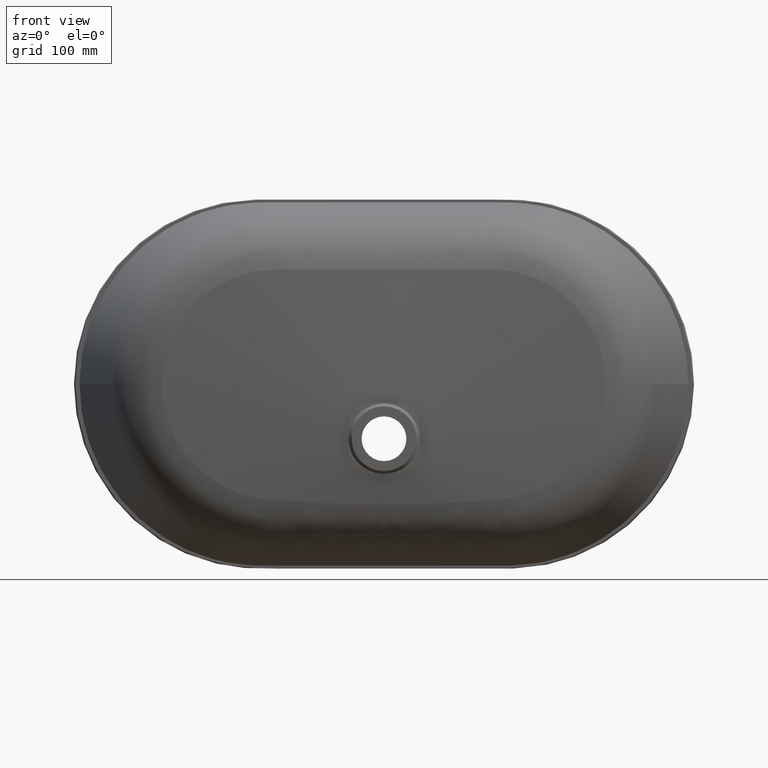
[diagram: clean part render]
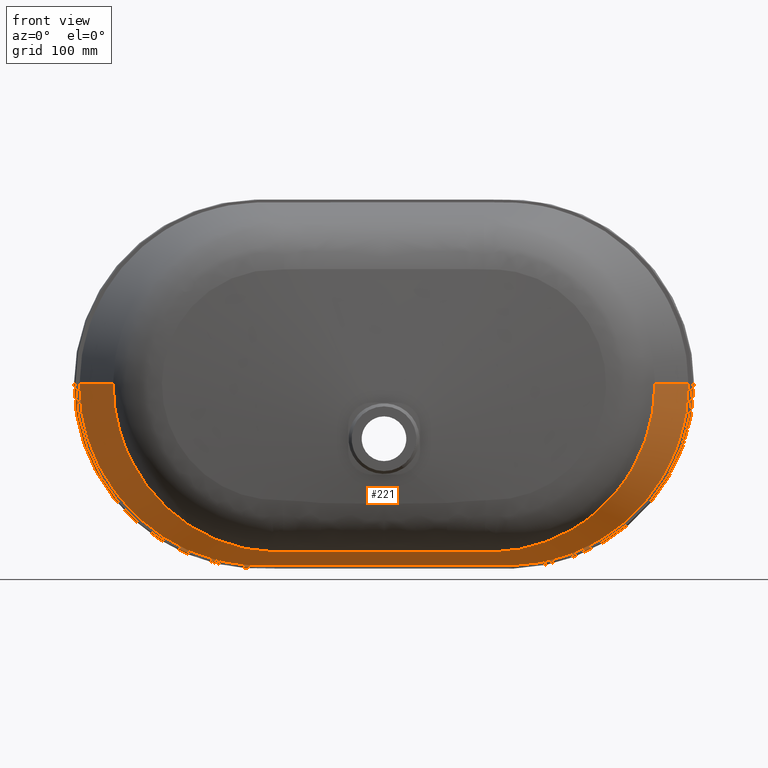
[diagram: same view with one face highlighted and labeled with its STEP entity id]
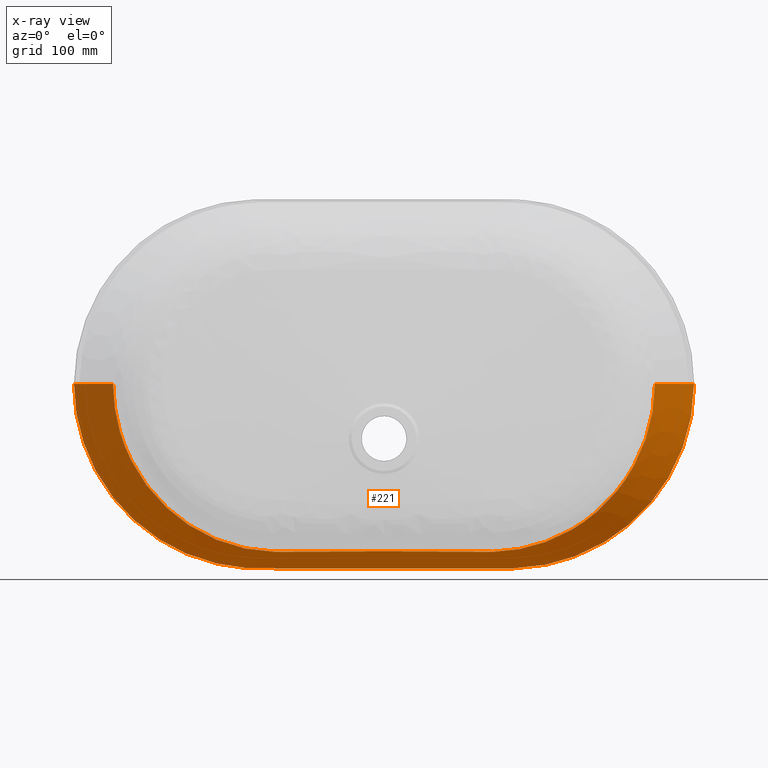
[diagram: x-ray of the same camera — body ghosted, the highlighted face saturated]
A machine part, front view. The second image highlights one B-rep face of the part: STEP entity #221.
The next image is the same camera in x-ray: the body ghosted, the highlighted face saturated — about 0% of this face is hidden behind the body in this view.
In plain terms, the highlighted face is a freeform B-spline surface patch.
Its self-contained STEP definition (entity closure, byte-faithful):
#11 = CARTESIAN_POINT ( 'NONE',  ( 167.1428668434834600, -62.46967030795718800, -157.0243041852110700 ) ) ;
#18 = CARTESIAN_POINT ( 'NONE',  ( 311.5017764221227600, -1.734723475976828600E-015, -8.751839720445049800 ) ) ;
#28 = CARTESIAN_POINT ( 'NONE',  ( 121.2511578375670200, -20.72713905414165600, -179.5021486568958800 ) ) ;
#33 = CARTESIAN_POINT ( 'NONE',  ( -101.8523799998709800, -67.36851461724865000, -166.2569263829765000 ) ) ;
#58 = CARTESIAN_POINT ( 'NONE',  ( 114.5741273212181700, -58.98164518680918200, -168.5539924868748200 ) ) ;
#67 = CARTESIAN_POINT ( 'NONE',  ( 278.2546672573281500, -3.903127820947741800E-015, -105.9478331071724700 ) ) ;
#78 = CARTESIAN_POINT ( 'NONE',  ( 279.4274463011912500, -22.71124357862072400, -80.95170037358450100 ) ) ;
#114 = CARTESIAN_POINT ( 'NONE',  ( 230.7175900736518800, 3.122502256758221200E-014, -152.9734404277197700 ) ) ;
#126 = CARTESIAN_POINT ( 'NONE',  ( 262.9635271916648700, -45.99711943105521100, -85.28343072849413900 ) ) ;
#131 = CARTESIAN_POINT ( 'NONE',  ( -111.1220431871568800, -44.03824686907996300, -172.8848433568881000 ) ) ;
#163 = CARTESIAN_POINT ( 'NONE',  ( 154.6404134439362400, 3.642919299551360500E-014, -183.1469868826846700 ) ) ;
#174 = CARTESIAN_POINT ( 'NONE',  ( 278.4522047448351700, -46.17106036605435500, -47.93616074622533300 ) ) ;
#179 = CARTESIAN_POINT ( 'NONE',  ( -106.6038942739611900, -67.36851461724865000, -166.2569263829765000 ) ) ;
#208 = CARTESIAN_POINT ( 'NONE',  ( 122.0027190025229400, -1.034328872551171700E-013, -185.3957089446949700 ) ) ;
#221 = ADVANCED_FACE ( 'NONE', ( #8310 ), #7142, .T. ) ;
#222 = CARTESIAN_POINT ( 'NONE',  ( 107.1501825487186000, -67.37632970535952400, -166.2539103106463500 ) ) ;
#228 = CARTESIAN_POINT ( 'NONE',  ( -119.6667178243935600, -20.70797912091438800, -179.5127603307995800 ) ) ;
#259 = CARTESIAN_POINT ( 'NONE',  ( -145.9505323175616800, 3.037934487304372800E-013, -184.3115016478749300 ) ) ;
#273 = CARTESIAN_POINT ( 'NONE',  ( 132.6286324727614700, -67.75678001989000200, -164.0923484429193900 ) ) ;
#280 = CARTESIAN_POINT ( 'NONE',  ( 16.59534111120838100, -20.70797912091320800, -179.5127603307992400 ) ) ;
#313 = CARTESIAN_POINT ( 'NONE',  ( -214.0030874960137100, 4.735795089416683400E-013, -163.2031362728198800 ) ) ;
#325 = CARTESIAN_POINT ( 'NONE',  ( 275.4639470730232300, -22.66808792766214600, -88.37721977250564000 ) ) ;
#360 = CARTESIAN_POINT ( 'NONE',  ( -273.0621080576245800, 7.025630077706167200E-014, -112.9671528519833100 ) ) ;
#403 = CARTESIAN_POINT ( 'NONE',  ( -308.4562749636107200, 1.301042606982810000E-014, -34.53934662071664300 ) ) ;
#510 = CARTESIAN_POINT ( 'NONE',  ( -114.5673916066022100, -44.05733063828557800, -172.8744860521150600 ) ) ;
#552 = CARTESIAN_POINT ( 'NONE',  ( -181.1249174171555300, -21.53756569702235200, -168.6668322599744000 ) ) ;
#576 = CARTESIAN_POINT ( 'NONE',  ( -109.2037735468490400, -58.63557263068994300, -168.7378758109761600 ) ) ;
#595 = CARTESIAN_POINT ( 'NONE',  ( -214.2825084733612500, 1.494843361569505400, -163.9410757437973400 ) ) ;
#620 = CARTESIAN_POINT ( 'NONE',  ( 113.2301050515245500, -44.03824686907996300, -172.8848433568881500 ) ) ;
#621 = CARTESIAN_POINT ( 'NONE',  ( -146.4394074674571900, -61.08358851996499100, -163.7945427384835000 ) ) ;
#641 = CARTESIAN_POINT ( 'NONE',  ( -232.4511599804046400, -69.10747087247011700, -107.6480308913674300 ) ) ;
#664 = CARTESIAN_POINT ( 'NONE',  ( 119.7304886039471500, -20.70797912091003900, -179.5127603308001800 ) ) ;
#665 = CARTESIAN_POINT ( 'NONE',  ( -218.0942693390146600, -65.84952818032101600, -124.5396932824212400 ) ) ;
#700 = EDGE_CURVE ( 'NONE', #12363, #3629, #12752, .T. ) ;
#707 = CARTESIAN_POINT ( 'NONE',  ( -261.9492149237409500, -68.59707341562041400, -58.49058250719900100 ) ) ;
#727 = CARTESIAN_POINT ( 'NONE',  ( -116.0977829218990100, -44.07970928707617700, -172.8497077931199900 ) ) ;
#743 = CARTESIAN_POINT ( 'NONE',  ( 103.6774373686314400, -67.36851461724862100, -166.2569263829765600 ) ) ;
#773 = CARTESIAN_POINT ( 'NONE',  ( -258.6397997631592600, -45.94719978486557500, -92.15515575571814100 ) ) ;
#778 = EDGE_CURVE ( 'NONE', #6867, #11522, #7640, .T. ) ;
#790 = CARTESIAN_POINT ( 'NONE',  ( 98.17494106069307200, -67.36851461724862100, -166.2569263829765600 ) ) ;
#812 = CARTESIAN_POINT ( 'NONE',  ( 269.5973817961745500, -69.03140197092335500, -29.70399335235224900 ) ) ;
#828 = CARTESIAN_POINT ( 'NONE',  ( 127.9359598928951100, 2.603042605177278800, -186.1298002117502200 ) ) ;
#834 = CARTESIAN_POINT ( 'NONE',  ( -106.7234264729933700, -67.36982435991666300, -166.2565431662296500 ) ) ;
#862 = CARTESIAN_POINT ( 'NONE',  ( -107.8786883463200300, -67.38742734269534700, -166.2468875176275300 ) ) ;
#870 = CARTESIAN_POINT ( 'NONE',  ( -311.5014372080728400, 7.871307772244762200E-013, -2.515349040166370300E-014 ) ) ;
#872 = CARTESIAN_POINT ( 'NONE',  ( 170.1250847277844400, -68.29229988577994000, -153.5193398679601000 ) ) ;
#899 = CARTESIAN_POINT ( 'NONE',  ( 257.8933696882180600, -68.35410762218252500, -68.44149489780672000 ) ) ;
#905 = CARTESIAN_POINT ( 'NONE',  ( -138.5340952326319600, 2.459379820001233800, -185.9193427133861600 ) ) ;
#918 = CARTESIAN_POINT ( 'NONE',  ( 201.2827627617438700, -45.24907827042941500, -148.5249261843537200 ) ) ;
#954 = CARTESIAN_POINT ( 'NONE',  ( -227.3157048527313900, -45.57492635077220900, -129.1600827555379600 ) ) ;
#965 = CARTESIAN_POINT ( 'NONE',  ( 237.4982138368889900, -69.16963023417703500, -101.7015586478911300 ) ) ;
#970 = CARTESIAN_POINT ( 'NONE',  ( 49.47423811228721000, -20.70797912091359900, -179.5127603307991500 ) ) ;
#978 = B_SPLINE_CURVE_WITH_KNOTS ( 'NONE', 3,
 ( #5367, #18, #7522, #1089, #8604, #2178, #9689, #3256, #10768, #4340, #11848, #5414, #12917, #6490, #67, #7569, #1141, #8653, #2225, #9737, #3302, #10814, #4388, #11895, #5458, #12963, #6539, #114, #7617, #1188, #8703, #2270, #9780, #3349, #10859, #4430, #11940, #5507, #13009, #6586, #163, #7664, #1236, #8749, #2320, #9827, #3398, #10909, #4480, #11987, #5553, #13062, #6633, #208, #7714, #1284, #8798, #2370, #9880, #3446, #10958, #4534, #12039, #5601, #13110, #6685, #259, #7762, #1335, #8850, #2420, #9930, #3501, #11006, #4583, #12089, #5654, #13161, #6735, #313, #7811, #1385, #8902, #2468, #9977, #3546, #11057, #4626, #12133, #5703, #13207, #6781, #360, #7859, #1433, #8944, #2516, #10023, #3589, #11101, #4674, #12175, #5747, #13253, #6828, #403, #7903, #1478, #8988 ),
 .UNSPECIFIED., .F., .F.,
 ( 4, 2, 2, 2, 2, 2, 2, 2, 2, 2, 2, 2, 2, 2, 2, 2, 2, 2, 2, 2, 2, 2, 2, 2, 2, 2, 2, 1, 1, 1, 1, 1, 2, 2, 2, 2, 2, 2, 2, 2, 2, 2, 2, 2, 2, 2, 2, 2, 2, 2, 2, 2, 2, 2, 2, 2, 4 ),
 ( 1.522215418473033700, 1.548285489164982700, 1.574355559856931900, 1.580873077529918900, 1.587390595202906200, 1.600425630548880700, 1.626495701240829400, 1.639530736586803900, 1.646048254259791200, 1.652565771932778200, 1.678635842624727000, 1.691670877970701300, 1.698188395643688500, 1.701447154480182100, 1.704705913316675800, 1.730775984008625000, 1.756846054700574000, 1.763363572373561200, 1.769881090046548500, 1.782916125392523200, 1.786174884229016600, 1.787804263647263500, 1.789433643065510200, 1.795951160738497300, 1.808986196084471300, 1.812244954920964700, 1.815503713757458300, 1.822021231430445400, 1.835056266776419600, 1.939336549544213200, 2.043616832312006500, 2.056651867657980600, 2.063169385330967800, 2.066428144167461200, 2.069686903003955100, 2.082721938349928700, 2.089239456022915500, 2.095756973695902700, 2.108792009041876400, 2.115309526714863600, 2.121827044387850400, 2.147897115079798100, 2.160932150425772100, 2.167449668098758900, 2.170708426935252300, 2.173967185771745700, 2.200037256463693400, 2.226107327155641100, 2.232624844828627900, 2.239142362501614700, 2.252177397847588300, 2.278247468539536000, 2.291282503885509600, 2.297800021558496800, 2.304317539231483600, 2.330387609923431300, 2.356457680615379000 ),
 .UNSPECIFIED. ) ;
#982 = CARTESIAN_POINT ( 'NONE',  ( 70.84035781900274700, -59.88159943499385200, -168.3838909233899700 ) ) ;
#1000 = CARTESIAN_POINT ( 'NONE',  ( -120.9890246702896500, -20.72344462424998200, -179.5052012696426700 ) ) ;
#1009 = CARTESIAN_POINT ( 'NONE',  ( 156.0163140186724000, 2.228800941213195100, -183.6669704581378500 ) ) ;
#1024 = CARTESIAN_POINT ( 'NONE',  ( -54.17290192985519300, -60.03108749255958500, -168.3414227252178000 ) ) ;
#1035 = CARTESIAN_POINT ( 'NONE',  ( 220.1810568844074100, -65.98498698106344300, -122.5677455005046300 ) ) ;
#1045 = CARTESIAN_POINT ( 'NONE',  ( -283.5223643792262500, -46.22694670401394700, -24.21633910552874300 ) ) ;
#1053 = CARTESIAN_POINT ( 'NONE',  ( 148.2212289729804400, -21.09994183270719900, -177.1419025275003500 ) ) ;
#1058 = CARTESIAN_POINT ( 'NONE',  ( -112.0857661042890200, -44.03824686907996300, -172.8848433568881000 ) ) ;
#1082 = CARTESIAN_POINT ( 'NONE',  ( 151.8466246497377200, -61.44534774307159400, -162.3170993508820500 ) ) ;
#1089 = CARTESIAN_POINT ( 'NONE',  ( 308.4550789262376000, 1.626303258728256400E-013, -34.54743891246748400 ) ) ;
#1101 = CARTESIAN_POINT ( 'NONE',  ( 116.0954902875188400, -44.07966454127319600, -172.8497602598229700 ) ) ;
#1106 = CARTESIAN_POINT ( 'NONE',  ( -126.6895321027511900, 2.619998664570023300, -186.1399502800450700 ) ) ;
#1132 = CARTESIAN_POINT ( 'NONE',  ( 111.5073792039723300, -58.78376137933148000, -168.6807886340763500 ) ) ;
#1141 = CARTESIAN_POINT ( 'NONE',  ( 273.0538672973198700, 3.382710778154777000E-014, -112.9777284580370800 ) ) ;
#1153 = CARTESIAN_POINT ( 'NONE',  ( 113.3554797179858600, -44.03956710397379500, -172.8844565343822000 ) ) ;
#1159 = CARTESIAN_POINT ( 'NONE',  ( -106.4320745598858600, -67.36851461724865000, -166.2569263829765000 ) ) ;
#1188 = CARTESIAN_POINT ( 'NONE',  ( 221.6316996550585000, -2.471980953266947100E-013, -159.0397349842035300 ) ) ;
#1200 = CARTESIAN_POINT ( 'NONE',  ( 263.2552095918348400, -69.47591263246697200, -53.71113298795997800 ) ) ;
#1205 = CARTESIAN_POINT ( 'NONE',  ( -65.71774944146058300, -20.70797912091705200, -179.5127603307984700 ) ) ;
#1236 = CARTESIAN_POINT ( 'NONE',  ( 152.4784555239914400, -2.602085213965210600E-015, -183.4708341801102400 ) ) ;
#1248 = CARTESIAN_POINT ( 'NONE',  ( 256.1339118162054000, -22.45128845826980800, -115.8468398117067000 ) ) ;
#1253 = CARTESIAN_POINT ( 'NONE',  ( -106.6611686847551800, -67.36851461724865000, -166.2569263829765000 ) ) ;
#1284 = CARTESIAN_POINT ( 'NONE',  ( 74.07478503361919300, -1.616545439175889400E-013, -185.3957089446948300 ) ) ;
#1298 = CARTESIAN_POINT ( 'NONE',  ( 276.2088792868702900, -46.14625265657112900, -55.71547116824682900 ) ) ;
#1305 = CARTESIAN_POINT ( 'NONE',  ( -126.8290057364575600, 2.618100131096801100, -186.1392841164081100 ) ) ;
#1335 = CARTESIAN_POINT ( 'NONE',  ( -152.4575816700276500, 7.350890729451717500E-014, -183.4859596469826200 ) ) ;
#1348 = CARTESIAN_POINT ( 'NONE',  ( 273.4189776949261800, -46.11513540326131300, -63.33981935761211400 ) ) ;
#1349 = VERTEX_POINT ( 'NONE', #3975 ) ;
#1385 = CARTESIAN_POINT ( 'NONE',  ( -221.5304181557340000, -1.561251128379356400E-014, -158.8756401302341600 ) ) ;
#1397 = CARTESIAN_POINT ( 'NONE',  ( 302.1154650267783900, 0.5132730833223304600, -59.72666407857180100 ) ) ;
#1433 = CARTESIAN_POINT ( 'NONE',  ( -278.2581725003216200, -1.366094737331751000E-013, -105.9423610008101000 ) ) ;
#1478 = CARTESIAN_POINT ( 'NONE',  ( -311.5014372080726200, -1.734723475976911400E-015, -8.755308401651399600 ) ) ;
#1536 = CARTESIAN_POINT ( 'NONE',  ( -254.1819900906638500, -69.36980237177633100, -75.25884850377224200 ) ) ;
#1576 = CARTESIAN_POINT ( 'NONE',  ( -283.2917265003591800, 0.7111375948212085300, -98.93436632137157000 ) ) ;
#1624 = CARTESIAN_POINT ( 'NONE',  ( -186.8763020001424000, -45.06203341184154700, -156.0408282587462200 ) ) ;
#1649 = CARTESIAN_POINT ( 'NONE',  ( -109.2908018559624000, -58.64116685963574600, -168.7362194312897300 ) ) ;
#1668 = CARTESIAN_POINT ( 'NONE',  ( -211.5944747516209400, -21.92274206666066400, -154.0520127347530500 ) ) ;
#1691 = CARTESIAN_POINT ( 'NONE',  ( 113.2902813472713200, -44.03824686907996300, -172.8848433568881500 ) ) ;
#1692 = CARTESIAN_POINT ( 'NONE',  ( -161.8566376285751900, -62.11513417994928000, -159.0434981165878400 ) ) ;
#1710 = CARTESIAN_POINT ( 'NONE',  ( -221.8951358510383900, 1.404149883781290700, -159.5864588315529000 ) ) ;
#1733 = CARTESIAN_POINT ( 'NONE',  ( 106.4316159108284000, -67.36851461724863600, -166.2569263829765600 ) ) ;
#1734 = CARTESIAN_POINT ( 'NONE',  ( -223.0043554793826100, -66.16754872859760900, -119.8120388214202400 ) ) ;
#1753 = CARTESIAN_POINT ( 'NONE',  ( -296.7144817020516700, -22.89670223141173400, -25.13316376818173800 ) ) ;
#1781 = CARTESIAN_POINT ( 'NONE',  ( -266.7750461309967100, -68.87621129405226800, -43.00509202017649100 ) ) ;
#1801 = CARTESIAN_POINT ( 'NONE',  ( -132.3983851093700800, -44.31527292815059100, -171.9326150465258000 ) ) ;
#1817 = CARTESIAN_POINT ( 'NONE',  ( 124.1811369547954300, 2.622288627257174400, -186.1406773047111200 ) ) ;
#1839 = CARTESIAN_POINT ( 'NONE',  ( 285.2258827059970900, -46.24557025970940300, 1.819376051218365800E-013 ) ) ;
#1846 = CARTESIAN_POINT ( 'NONE',  ( -216.0714578011518400, -68.90196669581050100, -124.3961835671405500 ) ) ;
#1862 = CARTESIAN_POINT ( 'NONE',  ( 110.5884233800441900, -20.70797912091454400, -179.5127603307992400 ) ) ;
#1885 = CARTESIAN_POINT ( 'NONE',  ( 268.0647648659716000, -68.94830388288791300, -37.71184165881818000 ) ) ;
#1891 = CARTESIAN_POINT ( 'NONE',  ( -109.3378862116941500, -67.40960809322609700, -166.2231687658936600 ) ) ;
#1901 = CARTESIAN_POINT ( 'NONE',  ( 115.5858326736659800, -44.07222380223557000, -172.8602712977192100 ) ) ;
#1907 = CARTESIAN_POINT ( 'NONE',  ( -124.1667929910641400, 2.622288627257472800, -186.1406773047111500 ) ) ;
#1935 = CARTESIAN_POINT ( 'NONE',  ( -120.7220245270150900, -20.71967841211337100, -179.5077116120839700 ) ) ;
#1949 = CARTESIAN_POINT ( 'NONE',  ( 108.3688843533836300, -67.39488332155100600, -166.2410775001332000 ) ) ;
#1978 = CARTESIAN_POINT ( 'NONE',  ( 308.7147415430548000, 0.4456407639758560600, -34.53001624571695800 ) ) ;
#1984 = CARTESIAN_POINT ( 'NONE',  ( -308.6903029532151100, 0.4459206279120863600, -34.66550161911331400 ) ) ;
#1996 = CARTESIAN_POINT ( 'NONE',  ( 113.4192119371517700, -44.04050189613599300, -172.8841339055789500 ) ) ;
#2001 = CARTESIAN_POINT ( 'NONE',  ( 69.81731638449215900, 2.622288627257610500, -186.1406773047112000 ) ) ;
#2023 = CARTESIAN_POINT ( 'NONE',  ( 283.5241771920513500, -46.22696947084693900, -24.20382984322144900 ) ) ;
#2032 = CARTESIAN_POINT ( 'NONE',  ( -129.6170174289228800, 2.580235769198097300, -186.1028367791468000 ) ) ;
#2042 = CARTESIAN_POINT ( 'NONE',  ( 127.6587850343206300, 2.606809316008939200, -186.1329899365310300 ) ) ;
#2047 = CARTESIAN_POINT ( 'NONE',  ( 0.1995041928938513800, 2.622288627257188100, -186.1406773047112600 ) ) ;
#2059 = CARTESIAN_POINT ( 'NONE',  ( 64.59044713959922000, -59.96616708621073900, -168.3598660224760700 ) ) ;
#2079 = CARTESIAN_POINT ( 'NONE',  ( -156.4257834298886100, -44.65273632639550500, -167.4057480107255700 ) ) ;
#2089 = CARTESIAN_POINT ( 'NONE',  ( 140.4254484922503300, -44.42849934618481500, -170.6170023417481300 ) ) ;
#2094 = CARTESIAN_POINT ( 'NONE',  ( -120.9870376009576500, 2.622288627257472800, -186.1406773047111500 ) ) ;
#2106 = CARTESIAN_POINT ( 'NONE',  ( -64.59044280120083700, -59.96616711310344500, -168.3598660148360300 ) ) ;
#2120 = CARTESIAN_POINT ( 'NONE',  ( 215.1880582242760600, -65.66111091398782700, -127.1983452129168900 ) ) ;
#2140 = CARTESIAN_POINT ( 'NONE',  ( 147.2984452417470300, 2.343049794430621900, -185.1044101641540200 ) ) ;
#2145 = CARTESIAN_POINT ( 'NONE',  ( 14.44593981044899400, -67.36851461724865000, -166.2569263829763300 ) ) ;
#2171 = CARTESIAN_POINT ( 'NONE',  ( 124.0854170537607600, -59.60006394456888800, -167.7810944366255800 ) ) ;
#2178 = CARTESIAN_POINT ( 'NONE',  ( 303.6123495201598000, 3.890117394877987400E-013, -53.50803492821567900 ) ) ;
#2181 = CARTESIAN_POINT ( 'NONE',  ( -100.0000000019619200, -58.99679448524219800, -168.6352559659328600 ) ) ;
#2193 = CARTESIAN_POINT ( 'NONE',  ( 0.1156409850120122000, -20.70797912091148200, -179.5127603307991800 ) ) ;
#2215 = CARTESIAN_POINT ( 'NONE',  ( 109.7170285744513900, -58.66856047597566700, -168.7275670858694200 ) ) ;
#2225 = CARTESIAN_POINT ( 'NONE',  ( 268.9817221571313400, -1.288032180912777500E-013, -118.0790377937632600 ) ) ;
#2235 = CARTESIAN_POINT ( 'NONE',  ( 106.9064323175578400, -67.37261470448550000, -166.2555876277337500 ) ) ;
#2241 = CARTESIAN_POINT ( 'NONE',  ( -125.2258553057244700, 2.622288627257708600, -186.1406773047111800 ) ) ;
#2270 = CARTESIAN_POINT ( 'NONE',  ( 198.5454012780321000, 2.556548722720823000E-013, -170.7936623178883600 ) ) ;
#2281 = CARTESIAN_POINT ( 'NONE',  ( 265.4230087413056400, -69.50086703930749400, -46.21375839762546900 ) ) ;
#2287 = CARTESIAN_POINT ( 'NONE',  ( -123.1068745276953100, 2.622288627257472800, -186.1406773047111500 ) ) ;
#2320 = CARTESIAN_POINT ( 'NONE',  ( 150.8473870914944300, 2.309350627394124900E-013, -183.6998399374865000 ) ) ;
#2333 = CARTESIAN_POINT ( 'NONE',  ( 216.0869641093353300, -68.90219849870631200, -124.3825472190072900 ) ) ;
#2339 = CARTESIAN_POINT ( 'NONE',  ( -119.8562572170479400, -20.70797912091244800, -179.5127603307994400 ) ) ;
#2370 = CARTESIAN_POINT ( 'NONE',  ( -74.06610177935502300, -5.334274688628720300E-014, -185.3957089446947200 ) ) ;
#2383 = CARTESIAN_POINT ( 'NONE',  ( 257.3608236890130500, -69.40707334840506300, -68.17759054215120800 ) ) ;
#2389 = CARTESIAN_POINT ( 'NONE',  ( -126.9684701678947500, 2.616202315638021900, -186.1384604514727000 ) ) ;
#2420 = CARTESIAN_POINT ( 'NONE',  ( -161.0758502091188100, 6.505213034913024100E-014, -182.0697545085139400 ) ) ;
#2432 = CARTESIAN_POINT ( 'NONE',  ( 171.9365901569710200, -44.86364921417388300, -162.5376087281361200 ) ) ;
#2461 = CARTESIAN_POINT ( 'NONE',  ( 267.5908078907764300, -69.52582144614802900, -38.71638380729096000 ) ) ;
#2468 = CARTESIAN_POINT ( 'NONE',  ( -225.2362036503614000, 3.447762908503920800E-013, -156.5796831406132700 ) ) ;
#2482 = CARTESIAN_POINT ( 'NONE',  ( 120.1869071335330100, -20.71212475965080200, -179.5113906789263800 ) ) ;
#2509 = EDGE_CURVE ( 'NONE', #11522, #4600, #5832, .T. ) ;
#2516 = CARTESIAN_POINT ( 'NONE',  ( -287.6203311870540900, 1.873501354054953700E-013, -91.36133149706317600 ) ) ;
#2592 = EDGE_CURVE ( 'NONE', #13200, #12363, #978, .T. ) ;
#2620 = CARTESIAN_POINT ( 'NONE',  ( -266.7872175310639600, -46.04036082271547100, -78.13981784952953500 ) ) ;
#2663 = CARTESIAN_POINT ( 'NONE',  ( -210.2271877872675800, -68.82760848937046200, -129.5835995288060500 ) ) ;
#2708 = CARTESIAN_POINT ( 'NONE',  ( -299.0782551172408100, 0.5447625094360957200, -68.05480371624008700 ) ) ;
#2732 = CARTESIAN_POINT ( 'NONE',  ( -109.7175277896688900, -58.66860346058212600, -168.7275530720954200 ) ) ;
#2751 = CARTESIAN_POINT ( 'NONE',  ( -139.9017831815499700, -20.98696291521995500, -178.5128587366147600 ) ) ;
#2777 = CARTESIAN_POINT ( 'NONE',  ( 126.6191934845347300, 2.620955663959442500, -186.1402857136974900 ) ) ;
#2778 = CARTESIAN_POINT ( 'NONE',  ( -176.9260120487639400, -63.12841084021411600, -152.7121935320142300 ) ) ;
#2793 = ORIENTED_EDGE ( 'NONE', *, *, #3492, .T. ) ;
#2798 = CARTESIAN_POINT ( 'NONE',  ( -107.6354788566092000, -67.38372546061825100, -166.2497677052716900 ) ) ;
#2823 = CARTESIAN_POINT ( 'NONE',  ( 104.5951644825717500, -67.36851461724862100, -166.2569263829765600 ) ) ;
#2824 = CARTESIAN_POINT ( 'NONE',  ( -232.1956966117131700, -66.75868049406453500, -109.8650911934679300 ) ) ;
#2844 = CARTESIAN_POINT ( 'NONE',  ( -221.9157278150360600, -68.97632490225053900, -119.2087676054750300 ) ) ;
#2870 = CARTESIAN_POINT ( 'NONE',  ( -269.3584568339544500, -69.01862248355007500, -31.02426194481906000 ) ) ;
#2889 = CARTESIAN_POINT ( 'NONE',  ( -291.4570901562141800, -22.84090963712047200, -49.74362368327672400 ) ) ;
#2901 = CARTESIAN_POINT ( 'NONE',  ( 114.6275987266695600, -20.70797912090868900, -179.5127603307999200 ) ) ;
#2924 = CARTESIAN_POINT ( 'NONE',  ( 298.4817174222081300, -22.91530251154072700, -8.385428571803791100 ) ) ;
#2931 = CARTESIAN_POINT ( 'NONE',  ( -267.6025617616481300, -69.52597056502479200, -38.66745053448714500 ) ) ;
#2948 = CARTESIAN_POINT ( 'NONE',  ( 94.50913336106958700, -67.36851461724862100, -166.2569263829765600 ) ) ;
#2978 = CARTESIAN_POINT ( 'NONE',  ( -256.2861332608824800, 1.006726042227735800, -132.8806757798205100 ) ) ;
#2988 = CARTESIAN_POINT ( 'NONE',  ( 129.5986749111188200, 2.580476318873013800, -186.1032038815453400 ) ) ;
#2995 = CARTESIAN_POINT ( 'NONE',  ( -119.7930793178473700, -20.70797912091244800, -179.5127603307994400 ) ) ;
#3016 = CARTESIAN_POINT ( 'NONE',  ( 295.5535132082725300, -22.88447358883345500, -33.37435237968419700 ) ) ;
#3022 = CARTESIAN_POINT ( 'NONE',  ( -170.0684725551626600, -68.29144751860148700, -153.5429266070174500 ) ) ;
#3031 = CARTESIAN_POINT ( 'NONE',  ( 229.0597197288323900, 1.319908228851084600, -154.7895440314879600 ) ) ;
#3065 = CARTESIAN_POINT ( 'NONE',  ( -201.2923947444931200, -45.24924514431546600, -148.5185664079761800 ) ) ;
#3077 = CARTESIAN_POINT ( 'NONE',  ( 139.8423176330024700, -20.98605106694886000, -178.5192135061509800 ) ) ;
#3082 = CARTESIAN_POINT ( 'NONE',  ( 35.12872140393988500, 2.622288627257324000, -186.1406773047112000 ) ) ;
#3093 = CARTESIAN_POINT ( 'NONE',  ( 100.0000000024155200, -58.99679448528349500, -168.6352559659212000 ) ) ;
#3104 = CARTESIAN_POINT ( 'NONE',  ( 296.7232834601924200, -22.89680437826200800, -25.07123993943480800 ) ) ;
#3114 = CARTESIAN_POINT ( 'NONE',  ( -280.6916983762910100, -46.19581816958029200, -40.17378626990131400 ) ) ;
#3128 = CARTESIAN_POINT ( 'NONE',  ( 147.9425864992574300, -67.97988074909770300, -161.0321971905855500 ) ) ;
#3133 = CARTESIAN_POINT ( 'NONE',  ( -14.55011067195050800, -67.36851461724862100, -166.2569263829763300 ) ) ;
#3146 = CARTESIAN_POINT ( 'NONE',  ( 54.17290445961496900, -60.03108747708853300, -168.3414227296130200 ) ) ;
#3157 = CARTESIAN_POINT ( 'NONE',  ( 311.1299623669019600, 0.4211011147679672400, -17.34788114783778600 ) ) ;
#3178 = CARTESIAN_POINT ( 'NONE',  ( -30.94831049553799900, -44.03824686907992700, -172.8848433568881000 ) ) ;
#3189 = CARTESIAN_POINT ( 'NONE',  ( -70.84035303518260200, -59.88159952125176500, -168.3838908988848300 ) ) ;
#3201 = CARTESIAN_POINT ( 'NONE',  ( 204.7554132521798400, -64.97956817647367700, -135.7992756814724400 ) ) ;
#3208 = CARTESIAN_POINT ( 'NONE',  ( 106.0802306495658100, -58.75684018830641300, -168.7034248002897200 ) ) ;
#3218 = CARTESIAN_POINT ( 'NONE',  ( 204.1747703152601600, -21.83092589607412000, -158.2783519016089700 ) ) ;
#3223 = CARTESIAN_POINT ( 'NONE',  ( -126.5485683319956300, 2.622288627257477200, -186.1406773047111500 ) ) ;
#3247 = CARTESIAN_POINT ( 'NONE',  ( 130.8255243138712600, -60.04164715916996200, -166.9774651645920200 ) ) ;
#3256 = CARTESIAN_POINT ( 'NONE',  ( 301.6073235769749800, -6.036837696399288700E-013, -59.74840513142844100 ) ) ;
#3259 = CARTESIAN_POINT ( 'NONE',  ( -103.0402295159279600, -58.87948638845374200, -168.6685821297932100 ) ) ;
#3269 = CARTESIAN_POINT ( 'NONE',  ( -100.5175390553690400, -44.03824686907994800, -172.8848433568881000 ) ) ;
#3293 = CARTESIAN_POINT ( 'NONE',  ( 109.2906255690124200, -58.64115243914488900, -168.7362236870640100 ) ) ;
#3302 = CARTESIAN_POINT ( 'NONE',  ( 255.9447828877833300, 1.457167719820519700E-013, -132.5294077432900500 ) ) ;
#3319 = CARTESIAN_POINT ( 'NONE',  ( 87.19167758943037000, -67.36851461724863600, -166.2569263829765600 ) ) ;
#3349 = CARTESIAN_POINT ( 'NONE',  ( 180.1668451323529000, -2.602085213965218200E-014, -177.2823604589095200 ) ) ;
#3353 = CARTESIAN_POINT ( 'NONE',  ( 272.2164071135385400, -69.14224597520744500, 1.149659538163445200E-013 ) ) ;
#3360 = CARTESIAN_POINT ( 'NONE',  ( 270.9970789913737700, -22.61848785644368600, -95.49460163739858800 ) ) ;
#3365 = CARTESIAN_POINT ( 'NONE',  ( -118.8637760793859700, 2.622288627257797000, -186.1406773047112000 ) ) ;
#3398 = CARTESIAN_POINT ( 'NONE',  ( 145.9532436818909100, -2.764715539838024200E-013, -184.3111693156132800 ) ) ;
#3410 = CARTESIAN_POINT ( 'NONE',  ( 210.2497885911089100, -68.82793089507903500, -129.5650819065168900 ) ) ;
#3416 = CARTESIAN_POINT ( 'NONE',  ( -126.3501759660821600, 2.622288627257737900, -186.1406773047111800 ) ) ;
#3446 = CARTESIAN_POINT ( 'NONE',  ( -121.9940357482587500, 5.074066167232159700E-013, -185.3957089446949200 ) ) ;
#3460 = CARTESIAN_POINT ( 'NONE',  ( 256.2743904544182100, 1.006889223605660100, -132.8939665816175800 ) ) ;
#3467 = CARTESIAN_POINT ( 'NONE',  ( -113.6744807437617800, -44.04424685064565600, -172.8826990366326600 ) ) ;
#3492 = EDGE_CURVE ( 'NONE', #3636, #3629, #3674, .T. ) ;
#3501 = CARTESIAN_POINT ( 'NONE',  ( -171.7337164461954400, 3.050944913374208500E-013, -179.6449209145218900 ) ) ;
#3512 = CARTESIAN_POINT ( 'NONE',  ( 126.6885053476931800, 2.620011869097930400, -186.1399549358785600 ) ) ;
#3546 = CARTESIAN_POINT ( 'NONE',  ( -227.9920432545347600, 2.563053935755728400E-013, -154.8013711011852300 ) ) ;
#3557 = CARTESIAN_POINT ( 'NONE',  ( 127.1043595046827300, 2.614351214260014300, -186.1375033969314400 ) ) ;
#3589 = CARTESIAN_POINT ( 'NONE',  ( -297.0129929330647100, 2.641116492174695900E-013, -71.92401759819286200 ) ) ;
#3629 = VERTEX_POINT ( 'NONE', #3719 ) ;
#3636 = VERTEX_POINT ( 'NONE', #12569 ) ;
#3674 = B_SPLINE_CURVE_WITH_KNOTS ( 'NONE', 3,
 ( #7000, #576, #1649, #9160, #2732, #10242, #3809, #11317, #4887, #12392, #5961, #13464, #7042, #621, #8113, #1692, #9208, #2778, #10285, #3855, #11362, #4928, #12434, #6006, #13507, #7084, #665, #8161, #1734, #9252, #2824, #10328, #3898, #11411, #4975, #12479, #6052, #13556, #7128, #707, #8208, #1781, #9294, #2870, #10373, #3943, #11453, #5021, #12524, #6098, #13599, #7177 ),
 .UNSPECIFIED., .F., .F.,
 ( 4, 2, 1, 1, 1, 1, 2, 2, 2, 2, 2, 2, 2, 2, 2, 2, 2, 2, 2, 2, 2, 2, 2, 2, 2, 2, 2, 4 ),
 ( -5.963736241612268000E-008, 0.0002516683659426165700, 0.0005033963692476492000, 0.001006852375857753700, 0.002013764389077962900, 0.004027588415518423000, 0.008055236468399305800, 0.01611053257416111800, 0.03222112478568472900, 0.04833171699720834000, 0.06444230920873195200, 0.08055290142025557700, 0.09666349363177917400, 0.1127740858433027800, 0.1168017338961836900, 0.1208293819490645800, 0.1288846780548264500, 0.1449952702663501700, 0.1611058624778739500, 0.1691611585836358100, 0.1772164546893977000, 0.1933270469009213400, 0.2094376391124450300, 0.2255482313239687000, 0.2295758793768496500, 0.2336035274297305600, 0.2416588235354924000, 0.2577694157470160600 ),
 .UNSPECIFIED. ) ;
#3697 = CARTESIAN_POINT ( 'NONE',  ( -271.9697111902290800, -69.57583779140475100, -2.515349040166370300E-014 ) ) ;
#3719 = CARTESIAN_POINT ( 'NONE',  ( -272.2160606404655100, -69.14226275898862200, -2.517818836011071300E-014 ) ) ;
#3737 = CARTESIAN_POINT ( 'NONE',  ( -243.3142537497621400, 1.153782141106372900, -144.5031811591841800 ) ) ;
#3762 = CARTESIAN_POINT ( 'NONE',  ( 106.6612213695672400, -67.36851461724863600, -166.2569263829766200 ) ) ;
#3782 = CARTESIAN_POINT ( 'NONE',  ( -108.3651073257417200, -67.39483110684953700, -166.2411271423392500 ) ) ;
#3809 = CARTESIAN_POINT ( 'NONE',  ( -111.5074962916515500, -58.78381311722635900, -168.6807654136951800 ) ) ;
#3829 = CARTESIAN_POINT ( 'NONE',  ( -147.8868869953340100, -67.97904146523590900, -161.0463560005124200 ) ) ;
#3854 = CARTESIAN_POINT ( 'NONE',  ( 119.9873380138205600, -20.70930609134007800, -179.5123710181676100 ) ) ;
#3855 = CARTESIAN_POINT ( 'NONE',  ( -191.1932991552757200, -64.07937408566456800, -144.9781360329702400 ) ) ;
#3872 = CARTESIAN_POINT ( 'NONE',  ( -270.9659756483101200, -22.61808776181067100, -95.54437941200176000 ) ) ;
#3897 = CARTESIAN_POINT ( 'NONE',  ( 119.7934408613581400, -20.70797912091039400, -179.5127603307994400 ) ) ;
#3898 = CARTESIAN_POINT ( 'NONE',  ( -242.0392908498902500, -67.37924349720239500, -97.00129054130472600 ) ) ;
#3942 = CARTESIAN_POINT ( 'NONE',  ( 106.6038190098825600, -67.36851461724863600, -166.2569263829766200 ) ) ;
#3943 = CARTESIAN_POINT ( 'NONE',  ( -270.0565560119647400, -69.05565267515386600, -26.98223006480873600 ) ) ;
#3963 = CARTESIAN_POINT ( 'NONE',  ( -278.4473306281186600, -46.17099414852989300, -47.95371631437130600 ) ) ;
#3975 = CARTESIAN_POINT ( 'NONE',  ( -100.0000000019619200, -58.99679448524219800, -168.6352559659328600 ) ) ;
#3978 = CARTESIAN_POINT ( 'NONE',  ( 110.1608116267786500, -44.03824686907996300, -172.8848433568881000 ) ) ;
#4002 = CARTESIAN_POINT ( 'NONE',  ( 311.7375521384191200, 0.4149652366279107400, -8.675262108338239700 ) ) ;
#4011 = CARTESIAN_POINT ( 'NONE',  ( -249.8001935053223100, 1.080254091667054200, -138.6919284695023600 ) ) ;
#4026 = CARTESIAN_POINT ( 'NONE',  ( 116.6441858849261900, -20.70797912090794000, -179.5127603308000300 ) ) ;
#4050 = CARTESIAN_POINT ( 'NONE',  ( 247.9641328157733500, -67.74971424219089000, -87.81327343774346200 ) ) ;
#4056 = CARTESIAN_POINT ( 'NONE',  ( -121.7899402057918600, -20.73473485778606900, -179.4958754651804900 ) ) ;
#4066 = CARTESIAN_POINT ( 'NONE',  ( 184.2209180384509500, -68.48486009058476000, -146.8110396616961600 ) ) ;
#4072 = CARTESIAN_POINT ( 'NONE',  ( -87.22951875033265900, -67.36851461724862100, -166.2569263829765600 ) ) ;
#4095 = CARTESIAN_POINT ( 'NONE',  ( 263.7392597642551700, -68.70172941017919800, -53.32157967008701900 ) ) ;
#4101 = CARTESIAN_POINT ( 'NONE',  ( -127.3868349082365800, 2.610511030145680400, -186.1355172034808200 ) ) ;
#4114 = CARTESIAN_POINT ( 'NONE',  ( 218.5543968498125200, -22.00770439754722200, -149.4082111629986700 ) ) ;
#4143 = CARTESIAN_POINT ( 'NONE',  ( 271.9502634409798800, -69.14576284498137700, -10.79890771296461500 ) ) ;
#4151 = CARTESIAN_POINT ( 'NONE',  ( -122.3237707024594800, -20.74225047559690400, -179.4872652275935500 ) ) ;
#4163 = CARTESIAN_POINT ( 'NONE',  ( 262.3629975309546000, 0.9387551466305246200, -126.6132853016068100 ) ) ;
#4168 = CARTESIAN_POINT ( 'NONE',  ( -106.7842301451022800, -67.37075173378204300, -166.2562256764619200 ) ) ;
#4179 = CARTESIAN_POINT ( 'NONE',  ( 109.1200508727969100, -58.63019164360951400, -168.7394045004876900 ) ) ;
#4190 = CARTESIAN_POINT ( 'NONE',  ( 242.1107962514190600, -67.38370136082770000, -96.89659747543312600 ) ) ;
#4200 = CARTESIAN_POINT ( 'NONE',  ( -204.2473302472512000, -21.83195346229814900, -158.2386620866570900 ) ) ;
#4210 = CARTESIAN_POINT ( 'NONE',  ( 114.0565154447583500, -44.04984512705695500, -172.8799154912339900 ) ) ;
#4215 = CARTESIAN_POINT ( 'NONE',  ( 61.94377442146439000, -44.03824686907993400, -172.8848433568881800 ) ) ;
#4226 = CARTESIAN_POINT ( 'NONE',  ( 33.33773679252318100, -60.15482271454699500, -168.3062706735168200 ) ) ;
#4237 = CARTESIAN_POINT ( 'NONE',  ( 285.2258827059970900, -46.24557025970940300, -8.095700622414669900 ) ) ;
#4246 = CARTESIAN_POINT ( 'NONE',  ( -293.7807795656238500, -22.86565161413973600, -41.68040501406585500 ) ) ;
#4259 = CARTESIAN_POINT ( 'NONE',  ( -102.4388143987572700, -20.70797912090879200, -179.5127603307996900 ) ) ;
#4271 = CARTESIAN_POINT ( 'NONE',  ( -79.17263306553427100, -59.69951510558721000, -168.4356194260622300 ) ) ;
#4283 = CARTESIAN_POINT ( 'NONE',  ( 191.3851348942097600, -64.09235726661557900, -144.8617407658481100 ) ) ;
#4290 = CARTESIAN_POINT ( 'NONE',  ( 103.0402295129172600, -58.87948638862677300, -168.6685821297441500 ) ) ;
#4302 = CARTESIAN_POINT ( 'NONE',  ( 214.1496365949859900, 1.496598983915374800, -164.0133117128022500 ) ) ;
#4307 = CARTESIAN_POINT ( 'NONE',  ( -46.42492580150042200, -44.03824686907993400, -172.8848433568881500 ) ) ;
#4332 = CARTESIAN_POINT ( 'NONE',  ( 122.7330572214596500, -59.51169448476338200, -167.9252667237709000 ) ) ;
#4340 = CARTESIAN_POINT ( 'NONE',  ( 298.6466140144594300, 4.917941054394253200E-013, -67.91931132668526100 ) ) ;
#4343 = CARTESIAN_POINT ( 'NONE',  ( -109.1200508827353000, -58.63019164314172100, -168.7394045006205400 ) ) ;
#4351 = CARTESIAN_POINT ( 'NONE',  ( 120.9851199428790900, -20.72338910158321900, -179.5052392640874900 ) ) ;
#4356 = CARTESIAN_POINT ( 'NONE',  ( -119.9876776024069000, -20.70931088035701600, -179.5123695695501500 ) ) ;
#4379 = CARTESIAN_POINT ( 'NONE',  ( 109.1200508727969100, -58.63019164360951400, -168.7394045004876900 ) ) ;
#4388 = CARTESIAN_POINT ( 'NONE',  ( 242.9510040052861900, 3.122502256758237600E-014, -143.9121761764124000 ) ) ;
#4402 = CARTESIAN_POINT ( 'NONE',  ( -34.75342887083722600, 2.622288627257326700, -186.1406773047112000 ) ) ;
#4430 = CARTESIAN_POINT ( 'NONE',  ( 173.8760087033011000, 5.204170427931442100E-015, -179.0851454053116600 ) ) ;
#4442 = CARTESIAN_POINT ( 'NONE',  ( 238.5422374220066200, -22.24725593186504500, -133.9400878064383800 ) ) ;
#4447 = CARTESIAN_POINT ( 'NONE',  ( -112.4842460908152300, 2.622288627257644700, -186.1406773047111500 ) ) ;
#4480 = CARTESIAN_POINT ( 'NONE',  ( 135.0717238163668400, 5.926249074805768200E-013, -185.2141841941066500 ) ) ;
#4494 = CARTESIAN_POINT ( 'NONE',  ( 126.9657472336490400, 2.616237394154651500, -186.1384761797430400 ) ) ;
#4501 = CARTESIAN_POINT ( 'NONE',  ( -119.7298995193553100, -20.70797912091439800, -179.5127603307995800 ) ) ;
#4534 = CARTESIAN_POINT ( 'NONE',  ( -126.3511365276746000, -4.683753385137379200E-014, -185.3980126703829700 ) ) ;
#4546 = CARTESIAN_POINT ( 'NONE',  ( 244.8253685396242600, -22.32118460382650900, -128.3281304529715200 ) ) ;
#4552 = CARTESIAN_POINT ( 'NONE',  ( -107.1490518633998500, -67.37631407611429800, -166.2539180953688200 ) ) ;
#4577 = B_SPLINE_CURVE_WITH_KNOTS ( 'NONE', 3,
 ( #3093, #11686, #12756, #6333, #13827, #7409, #982, #8485, #2059, #9576, #3146, #10649, #4226, #11735, #5299, #12801, #6377, #13875, #7454, #1024, #8533, #2106, #9621, #3189, #10701, #4271, #11780, #5346, #12848, #6421 ),
 .UNSPECIFIED., .F., .F.,
 ( 4, 2, 2, 2, 2, 2, 2, 2, 2, 2, 2, 2, 2, 2, 4 ),
 ( 0.0000000000000000000, 0.01250105039179159500, 0.02500210078358319100, 0.03125262597947896200, 0.03750315117537474100, 0.05000420156716629100, 0.07500630235074939900, 0.1000084031343325100, 0.1250105039179156300, 0.1500126047014987100, 0.1625136550932902700, 0.1687641802891860200, 0.1750147054850817700, 0.1875157558768733000, 0.2000168062686648000 ),
 .UNSPECIFIED. ) ;
#4583 = CARTESIAN_POINT ( 'NONE',  ( -178.0462433248869400, 3.454268121538797400E-013, -177.9169318247652400 ) ) ;
#4595 = CARTESIAN_POINT ( 'NONE',  ( 124.9281808913639400, -67.64375301994870400, -165.3491484270398100 ) ) ;
#4600 = VERTEX_POINT ( 'NONE', #7792 ) ;
#4626 = CARTESIAN_POINT ( 'NONE',  ( -243.0319940609797100, 2.550043509685906400E-013, -144.0394808610345800 ) ) ;
#4638 = CARTESIAN_POINT ( 'NONE',  ( 227.3153141521317500, -45.57492219437189400, -129.1605965659826200 ) ) ;
#4674 = CARTESIAN_POINT ( 'NONE',  ( -300.9008930471187600, 1.275021754842953700E-013, -61.78154420923702600 ) ) ;
#4774 = CARTESIAN_POINT ( 'NONE',  ( -282.8186721625464800, -22.74798477565138200, -73.36381455708343000 ) ) ;
#4820 = CARTESIAN_POINT ( 'NONE',  ( -148.4826128489707500, -44.54230334847381600, -169.2959632129562000 ) ) ;
#4863 = CARTESIAN_POINT ( 'NONE',  ( -263.2723833359545400, -69.47613573951818500, -53.66093372155796700 ) ) ;
#4887 = CARTESIAN_POINT ( 'NONE',  ( -115.9208195782426700, -59.06889742189118000, -168.4784452955494800 ) ) ;
#4927 = CARTESIAN_POINT ( 'NONE',  ( 118.6602658370642000, -20.70797912091016700, -179.5127603308001500 ) ) ;
#4928 = CARTESIAN_POINT ( 'NONE',  ( -204.5954732723503200, -64.96873100301321800, -135.9195021288164500 ) ) ;
#4946 = CARTESIAN_POINT ( 'NONE',  ( -108.8515126170059200, -67.40222470273656100, -166.2332203811222700 ) ) ;
#4968 = CARTESIAN_POINT ( 'NONE',  ( 298.4066533192613000, -23.04741532506880800, 2.851118621579215400E-013 ) ) ;
#4974 = CARTESIAN_POINT ( 'NONE',  ( 126.2854935298992600, 2.622288627257473700, -186.1406773047112000 ) ) ;
#4975 = CARTESIAN_POINT ( 'NONE',  ( -247.8667103582953900, -67.74306791976734100, -87.85092561745679500 ) ) ;
#4995 = CARTESIAN_POINT ( 'NONE',  ( -242.1445480648491500, -69.22606712696409700, -95.37568105509045300 ) ) ;
#5005 = ORIENTED_EDGE ( 'NONE', *, *, #11570, .T. ) ;
#5021 = CARTESIAN_POINT ( 'NONE',  ( -270.8497833891763700, -69.09612691483512500, -21.59207952643474800 ) ) ;
#5040 = CARTESIAN_POINT ( 'NONE',  ( -291.9966453751974900, 0.6187947548971496300, -83.90407652993978600 ) ) ;
#5054 = CARTESIAN_POINT ( 'NONE',  ( 106.3084138272221000, -44.03824686907994100, -172.8848433568881000 ) ) ;
#5076 = CARTESIAN_POINT ( 'NONE',  ( -285.3111861630013700, -46.09484183932549700, -2.515349040166370300E-014 ) ) ;
#5083 = CARTESIAN_POINT ( 'NONE',  ( -208.0551688439792900, -45.33512646423961500, -144.0225530161662000 ) ) ;
#5099 = CARTESIAN_POINT ( 'NONE',  ( 100.5282190066625000, -44.03824686907994100, -172.8848433568881000 ) ) ;
#5129 = CARTESIAN_POINT ( 'NONE',  ( -114.3122914129924900, -44.05359547886596500, -172.8774813016402400 ) ) ;
#5141 = CARTESIAN_POINT ( 'NONE',  ( 291.4811896434069400, -22.84119586720511200, -49.65937328868906800 ) ) ;
#5148 = CARTESIAN_POINT ( 'NONE',  ( -77.36186506481976700, -44.03824686907994100, -172.8848433568881000 ) ) ;
#5175 = EDGE_CURVE ( 'NONE', #13200, #6867, #7806, .T. ) ;
#5179 = CARTESIAN_POINT ( 'NONE',  ( -181.8963416093612600, 1.895297461013621100, -177.4649149370102400 ) ) ;
#5194 = CARTESIAN_POINT ( 'NONE',  ( -86.83023806193435200, 2.622288627257369800, -186.1406773047110900 ) ) ;
#5217 = CARTESIAN_POINT ( 'NONE',  ( 280.6955302028000600, -46.19586807553756800, -40.15685032420383000 ) ) ;
#5225 = CARTESIAN_POINT ( 'NONE',  ( -266.5025582728588900, -22.56852437568957700, -102.6510371625860800 ) ) ;
#5237 = CARTESIAN_POINT ( 'NONE',  ( 128.4903096100440800, 2.595509183513958100, -186.1234207621885700 ) ) ;
#5242 = CARTESIAN_POINT ( 'NONE',  ( 15.52064046082870300, -44.03824686907997000, -172.8848433568880100 ) ) ;
#5282 = CARTESIAN_POINT ( 'NONE',  ( 206.2367307902474400, 1.593033876577403300, -167.8159413975710900 ) ) ;
#5299 = CARTESIAN_POINT ( 'NONE',  ( 8.334727797065665900, -60.24354357703499800, -168.2810658830371200 ) ) ;
#5312 = CARTESIAN_POINT ( 'NONE',  ( 309.9223519549783500, 0.4333709393719116200, -25.93894869677735900 ) ) ;
#5320 = CARTESIAN_POINT ( 'NONE',  ( -302.0637383657936500, 0.5138607229635542300, -59.88038230634438000 ) ) ;
#5328 = CARTESIAN_POINT ( 'NONE',  ( 196.5501799050156000, -21.73453821764016800, -161.9315806386588600 ) ) ;
#5333 = CARTESIAN_POINT ( 'NONE',  ( -113.4193411506776500, -44.04050432308080300, -172.8841330952451800 ) ) ;
#5346 = CARTESIAN_POINT ( 'NONE',  ( -91.66946396294271400, -59.30838280272637100, -168.5467365575569000 ) ) ;
#5359 = CARTESIAN_POINT ( 'NONE',  ( 181.9425566454322600, -63.46361575895423400, -150.1215561172122600 ) ) ;
#5367 = CARTESIAN_POINT ( 'NONE',  ( 311.5017764221226500, 4.787836793695987600E-013, 2.747640664219218800E-013 ) ) ;
#5378 = CARTESIAN_POINT ( 'NONE',  ( 106.7236171605107300, -67.36982699628849500, -166.2565423699840300 ) ) ;
#5383 = CARTESIAN_POINT ( 'NONE',  ( 31.00714023925379000, -44.03824686907997000, -172.8848433568881000 ) ) ;
#5406 = CARTESIAN_POINT ( 'NONE',  ( 118.6582256794627200, -59.24632047592004400, -168.2907903160196100 ) ) ;
#5414 = CARTESIAN_POINT ( 'NONE',  ( 291.7026351672225200, -2.003605614753209700E-013, -83.74402334428765500 ) ) ;
#5424 = CARTESIAN_POINT ( 'NONE',  ( 244.2911507174093800, -45.77950348822590600, -111.7489500572090900 ) ) ;
#5429 = CARTESIAN_POINT ( 'NONE',  ( -17.27103337580042500, 2.622288627256962500, -186.1406773047112300 ) ) ;
#5458 = CARTESIAN_POINT ( 'NONE',  ( 236.0598241428809600, 3.512815038853035000E-014, -149.1933858806514500 ) ) ;
#5470 = CARTESIAN_POINT ( 'NONE',  ( 236.3388107852683500, 1.234135793142431700, -149.9224634732356100 ) ) ;
#5476 = CARTESIAN_POINT ( 'NONE',  ( -112.5831894871492700, -20.70797912091505900, -179.5127603307995200 ) ) ;
#5507 = CARTESIAN_POINT ( 'NONE',  ( 165.3852994182799700, -4.078768572890463100E-013, -181.1846145981045300 ) ) ;
#5518 = CARTESIAN_POINT ( 'NONE',  ( 254.1619741593670200, -69.36953351607269300, -75.29769042013794000 ) ) ;
#5523 = CARTESIAN_POINT ( 'NONE',  ( -104.5996682852032200, -67.36851461724865000, -166.2569263829765000 ) ) ;
#5553 = CARTESIAN_POINT ( 'NONE',  ( 128.5381313817510700, 9.822871682718671400E-014, -185.3783641135970900 ) ) ;
#5566 = CARTESIAN_POINT ( 'NONE',  ( 242.1307930414600100, -69.22589178242164100, -95.39449756384098600 ) ) ;
#5572 = CARTESIAN_POINT ( 'NONE',  ( -106.4893466259055300, -67.36851461724865000, -166.2569263829765000 ) ) ;
#5601 = CARTESIAN_POINT ( 'NONE',  ( -129.6186825121196800, 2.621600853069949700E-013, -185.3591611285801000 ) ) ;
#5614 = CARTESIAN_POINT ( 'NONE',  ( 120.4529868059331400, -20.71588091832973800, -179.5096375069189800 ) ) ;
#5620 = CARTESIAN_POINT ( 'NONE',  ( -120.4549985204346600, -20.71590941300410500, -179.5096231843652700 ) ) ;
#5654 = CARTESIAN_POINT ( 'NONE',  ( -190.4662300649741000, -7.155734338404201800E-014, -174.0045243564847500 ) ) ;
#5657 = ORIENTED_EDGE ( 'NONE', *, *, #5899, .T. ) ;
#5668 = CARTESIAN_POINT ( 'NONE',  ( 221.9241396275617700, -68.97646610233358900, -119.2000125314977100 ) ) ;
#5703 = CARTESIAN_POINT ( 'NONE',  ( -261.9570154596668200, -2.537033083616116700E-013, -126.3694297013672200 ) ) ;
#5715 = CARTESIAN_POINT ( 'NONE',  ( 267.9759000794052200, 0.8771358873541600400, -119.9457671736563600 ) ) ;
#5747 = CARTESIAN_POINT ( 'NONE',  ( -302.9791212752910500, 1.157927920214537200E-013, -55.56263340955015900 ) ) ;
#5832 = B_SPLINE_CURVE_WITH_KNOTS ( 'NONE', 3,
 ( #10720, #3208, #4290, #11801 ),
 .UNSPECIFIED., .F., .F.,
 ( 4, 4 ),
 ( -5.963748632890484800E-008, 0.009127950684614361000 ),
 .UNSPECIFIED. ) ;
#5855 = CARTESIAN_POINT ( 'NONE',  ( -273.4121545991961900, -46.11502634087029400, -63.35760674039324400 ) ) ;
#5895 = CARTESIAN_POINT ( 'NONE',  ( -190.2945433699154600, 1.789236501677375700, -174.8034793128298400 ) ) ;
#5899 = EDGE_CURVE ( 'NONE', #1349, #3636, #8432, .T. ) ;
#5961 = CARTESIAN_POINT ( 'NONE',  ( -122.6626409510588000, -59.50704446125035200, -167.9489523801495400 ) ) ;
#5974 = ORIENTED_EDGE ( 'NONE', *, *, #2509, .T. ) ;
#5983 = CARTESIAN_POINT ( 'NONE',  ( -298.4813790858766500, -22.91530229506550900, -2.515349040166370300E-014 ) ) ;
#6005 = CARTESIAN_POINT ( 'NONE',  ( 119.8563910931669600, -20.70797912091039400, -179.5127603307994400 ) ) ;
#6006 = CARTESIAN_POINT ( 'NONE',  ( -214.0354275818081400, -65.58583901091350300, -128.1883466649604800 ) ) ;
#6025 = CARTESIAN_POINT ( 'NONE',  ( -127.9445378212926100, 2.602931310804884400, -186.1297045278697100 ) ) ;
#6046 = CARTESIAN_POINT ( 'NONE',  ( 285.3115302164001200, -46.09483065013796500, 2.352260275964617600E-013 ) ) ;
#6051 = CARTESIAN_POINT ( 'NONE',  ( 113.1699287557778000, -44.03824686907996300, -172.8848433568881500 ) ) ;
#6052 = CARTESIAN_POINT ( 'NONE',  ( -251.9156425010364700, -67.99211433618208400, -80.72938267046359300 ) ) ;
#6072 = CARTESIAN_POINT ( 'NONE',  ( -164.1897776285044900, -44.75834454606673800, -164.9683079506518200 ) ) ;
#6098 = CARTESIAN_POINT ( 'NONE',  ( -271.9493457602483200, -69.14580686767548900, -10.80329526735990300 ) ) ;
#6117 = CARTESIAN_POINT ( 'NONE',  ( -289.1334007468045700, -22.81616766010120000, -57.80684235248758500 ) ) ;
#6132 = CARTESIAN_POINT ( 'NONE',  ( 100.0078449105048300, -67.36851461724862100, -166.2569263829765600 ) ) ;
#6163 = CARTESIAN_POINT ( 'NONE',  ( -229.1539565162179900, 1.318677876672426300, -154.7264978940363600 ) ) ;
#6173 = CARTESIAN_POINT ( 'NONE',  ( 295.5980611592370900, 0.5810853424481369200, -75.84374534557292700 ) ) ;
#6174 = EDGE_LOOP ( 'NONE', ( #9664, #10217, #13055, #5974, #5005, #5657, #2793, #6470 ) ) ;
#6180 = CARTESIAN_POINT ( 'NONE',  ( 96.67333779149507200, -44.03824686907994800, -172.8848433568880700 ) ) ;
#6201 = CARTESIAN_POINT ( 'NONE',  ( 266.7843908612180100, -68.87662907880231000, -42.96710159014177300 ) ) ;
#6208 = CARTESIAN_POINT ( 'NONE',  ( -155.3336388943656900, -68.08438269434610400, -158.7211222990660500 ) ) ;
#6218 = CARTESIAN_POINT ( 'NONE',  ( 115.0761013859097900, -44.06477229882573700, -172.8685188892178800 ) ) ;
#6224 = CARTESIAN_POINT ( 'NONE',  ( -100.0220163026786100, -67.36851461724866400, -166.2569263829765000 ) ) ;
#6255 = CARTESIAN_POINT ( 'NONE',  ( -173.0437813413539100, -21.43172016542885700, -171.2163247210086800 ) ) ;
#6294 = CARTESIAN_POINT ( 'NONE',  ( 270.2624411010427800, -69.06627710754420900, -25.66602331046964400 ) ) ;
#6302 = CARTESIAN_POINT ( 'NONE',  ( -238.5584694244523700, -22.24747789249261500, -133.9254746628276100 ) ) ;
#6321 = CARTESIAN_POINT ( 'NONE',  ( -52.14369332314765200, 2.622288627257465700, -186.1406773047111800 ) ) ;
#6333 = CARTESIAN_POINT ( 'NONE',  ( 83.33838362257346000, -59.57926980395103600, -168.4697800231180100 ) ) ;
#6351 = CARTESIAN_POINT ( 'NONE',  ( -260.5788228962406400, -69.44484714925931700, -61.00983759756525200 ) ) ;
#6360 = CARTESIAN_POINT ( 'NONE',  ( 266.7949869939288900, -46.04046436253800300, -78.12408036621405900 ) ) ;
#6377 = CARTESIAN_POINT ( 'NONE',  ( -16.66919733674764400, -60.22340572099304300, -168.2867868648672500 ) ) ;
#6388 = CARTESIAN_POINT ( 'NONE',  ( 228.7472853779274000, -66.53902559211967100, -113.8262446336840600 ) ) ;
#6398 = CARTESIAN_POINT ( 'NONE',  ( -189.0131522954991100, -21.63937854848773400, -165.5471354560014000 ) ) ;
#6410 = CARTESIAN_POINT ( 'NONE',  ( -108.2182321999605100, 2.622288627257153900, -186.1406773047110900 ) ) ;
#6421 = CARTESIAN_POINT ( 'NONE',  ( -100.0000000019619200, -58.99679448524219800, -168.6352559659328600 ) ) ;
#6433 = CARTESIAN_POINT ( 'NONE',  ( 177.0807842343838300, -63.13832379578662600, -152.5437620711743100 ) ) ;
#6450 = CARTESIAN_POINT ( 'NONE',  ( 120.0538610537247300, -20.71024564744365300, -179.5120442384205100 ) ) ;
#6455 = CARTESIAN_POINT ( 'NONE',  ( -96.65939659755363800, -44.03824686907995600, -172.8848433568881000 ) ) ;
#6470 = ORIENTED_EDGE ( 'NONE', *, *, #700, .F. ) ;
#6482 = CARTESIAN_POINT ( 'NONE',  ( 120.0195629316012900, -59.33482911942783000, -168.1801257663761100 ) ) ;
#6490 = CARTESIAN_POINT ( 'NONE',  ( 280.6999350730263800, 1.235990476633474300E-013, -102.3503289078826400 ) ) ;
#6501 = CARTESIAN_POINT ( 'NONE',  ( 181.0326979963925000, -21.53622910158955200, -168.7009648470744000 ) ) ;
#6506 = CARTESIAN_POINT ( 'NONE',  ( -29.04575130788839100, -67.36851461724865000, -166.2569263829765000 ) ) ;
#6539 = CARTESIAN_POINT ( 'NONE',  ( 232.5140909502934800, 3.122502256758252100E-014, -151.7298131743094100 ) ) ;
#6551 = CARTESIAN_POINT ( 'NONE',  ( 106.7845555461931000, -67.37075623235415400, -166.2562241225672600 ) ) ;
#6556 = CARTESIAN_POINT ( 'NONE',  ( -117.6444180891102600, -20.70797912091240500, -179.5127603307994700 ) ) ;
#6586 = CARTESIAN_POINT ( 'NONE',  ( 155.7197240828044500, -2.361392331673435200E-013, -182.9743579891627100 ) ) ;
#6598 = CARTESIAN_POINT ( 'NONE',  ( 188.9255894947710600, -21.63815053920621900, -165.5848093757088300 ) ) ;
#6603 = CARTESIAN_POINT ( 'NONE',  ( -119.9194351162485200, -20.70797912091244800, -179.5127603307994400 ) ) ;
#6633 = CARTESIAN_POINT ( 'NONE',  ( 125.2705326822208500, -1.034328872551171100E-013, -185.3957089446949200 ) ) ;
#6646 = CARTESIAN_POINT ( 'NONE',  ( 289.1622703083386900, -22.81651636829702000, -57.72073731134875600 ) ) ;
#6653 = CARTESIAN_POINT ( 'NONE',  ( -120.1879660480480500, -20.71213971715586100, -179.5113850640834100 ) ) ;
#6685 = CARTESIAN_POINT ( 'NONE',  ( -139.4192770216584700, 3.037934487304382400E-013, -184.9460344076209100 ) ) ;
#6697 = CARTESIAN_POINT ( 'NONE',  ( 113.8015973288943200, -44.04610863894046000, -172.8817729240706200 ) ) ;
#6703 = CARTESIAN_POINT ( 'NONE',  ( -113.1698495905074100, -44.03824686907996300, -172.8848433568881000 ) ) ;
#6735 = CARTESIAN_POINT ( 'NONE',  ( -210.1706299781897100, 1.925543058334255400E-013, -165.2097494676295600 ) ) ;
#6747 = CARTESIAN_POINT ( 'NONE',  ( 250.4624514742866400, -69.32597138776976900, -82.19094299637993100 ) ) ;
#6781 = CARTESIAN_POINT ( 'NONE',  ( -270.3583758660384400, 7.025630077706221500E-014, -116.3955733151219200 ) ) ;
#6828 = CARTESIAN_POINT ( 'NONE',  ( -306.6464296787292500, -2.732189474663471200E-013, -43.00825291330286100 ) ) ;
#6867 = VERTEX_POINT ( 'NONE', #3353 ) ;
#6932 = CARTESIAN_POINT ( 'NONE',  ( -115.5877286789830100, -44.07226053071808300, -172.8602351973341300 ) ) ;
#6973 = CARTESIAN_POINT ( 'NONE',  ( -285.2255451380521000, -46.24557004323609300, -2.515349040166370300E-014 ) ) ;
#7000 = CARTESIAN_POINT ( 'NONE',  ( -109.1200508827353000, -58.63019164314172100, -168.7394045006205400 ) ) ;
#7019 = CARTESIAN_POINT ( 'NONE',  ( -122.8574685423688200, -20.74975478579693800, -179.4762660256180900 ) ) ;
#7041 = CARTESIAN_POINT ( 'NONE',  ( 125.2337884576359700, 2.622288627257473700, -186.1406773047112000 ) ) ;
#7042 = CARTESIAN_POINT ( 'NONE',  ( -135.9732950026697700, -60.38245183477265200, -166.1021619787109400 ) ) ;
#7083 = CARTESIAN_POINT ( 'NONE',  ( 126.4826771348085400, 2.622288627257203700, -186.1406773047112000 ) ) ;
#7084 = CARTESIAN_POINT ( 'NONE',  ( -217.0878106019918900, -65.78423047617978600, -125.4668998783481600 ) ) ;
#7102 = CARTESIAN_POINT ( 'NONE',  ( -270.3302340701021600, -69.55718790556996100, -23.29961797786318200 ) ) ;
#7128 = CARTESIAN_POINT ( 'NONE',  ( -257.9255578936715700, -68.35632064616288500, -68.52872591447193400 ) ) ;
#7142 = B_SPLINE_SURFACE_WITH_KNOTS ( 'NONE', 3, 3, ( 
 ( #12544, #5983, #6973, #3697 ),
 ( #7382, #7150, #13575, #13401 ),
 ( #12498, #9363, #11250, #11754 ),
 ( #11383, #1753, #1045, #7102 ),
 ( #1984, #12367, #8364, #9182 ),
 ( #8456, #4246, #3114, #2931 ),
 ( #11473, #2889, #3963, #13355 ),
 ( #5320, #6117, #10623, #4863 ),
 ( #2708, #10215, #5855, #6351 ),
 ( #10577, #4774, #11206, #8227 ),
 ( #5040, #10128, #2620, #1536 ),
 ( #7960, #10485, #7334, #11565 ),
 ( #1576, #3872, #773, #9454 ),
 ( #10261, #5225, #13662, #4995 ),
 ( #10348, #10171, #8047, #9550 ),
 ( #8133, #13483, #11708, #641 ),
 ( #9227, #8273, #7283, #9313 ),
 ( #2978, #12630, #9269, #2844 ),
 ( #4011, #6302, #954, #1846 ),
 ( #3737, #11610, #8557, #2663 ),
 ( #11337, #9092, #10302, #8005 ),
 ( #6163, #12727, #5083, #11517 ),
 ( #1710, #1668, #3065, #11656 ),
 ( #595, #4200, #11290, #12452 ),
 ( #13528, #12775, #1624, #12587 ),
 ( #9133, #6398, #13618, #3022 ),
 ( #5895, #552, #8318, #13800 ),
 ( #5179, #6255, #6072, #6208 ),
 ( #7196, #12322, #2079, #3829 ),
 ( #10438, #8407, #4820, #8182 ),
 ( #11430, #9410, #10533, #8089 ),
 ( #13754, #2751, #1801, #7239 ),
 ( #905, #7427, #8507, #13846 ),
 ( #2032, #7019, #727, #1891 ),
 ( #13708, #4151, #6932, #4946 ),
 ( #12676, #4056, #12282, #3782 ),
 ( #6025, #7476, #510, #862 ),
 ( #12411, #1000, #5129, #2798 ),
 ( #4101, #1935, #9595, #13129 ),
 ( #9752, #5620, #12060, #4552 ),
 ( #2389, #7780, #3467, #9899 ),
 ( #1305, #6653, #10976, #11815 ),
 ( #1106, #8336, #5333, #4168 ),
 ( #10735, #4356, #9427, #834 ),
 ( #3223, #6603, #7685, #1253 ),
 ( #8766, #2339, #9847, #179 ),
 ( #8818, #2995, #6703, #13029 ),
 ( #3416, #4501, #12006, #5572 ),
 ( #13081, #228, #7733, #1159 ),
 ( #2241, #8620, #1058, #13725 ),
 ( #1907, #6556, #131, #5523 ),
 ( #2287, #7536, #7633, #8720 ),
 ( #2094, #7492, #8672, #33 ),
 ( #3365, #5476, #7584, #6224 ),
 ( #9656, #11769, #11955, #10876 ),
 ( #4447, #11912, #3269, #10688 ),
 ( #6410, #4259, #6455, #10928 ),
 ( #9705, #12744, #11626, #4072 ),
 ( #5194, #12694, #5148, #13771 ),
 ( #7352, #1205, #11864, #11722 ),
 ( #6321, #13816, #4307, #12932 ),
 ( #4402, #13911, #3178, #6506 ),
 ( #5429, #10828, #9565, #3133 ),
 ( #2047, #2193, #8572, #11674 ),
 ( #9609, #280, #5242, #2145 ),
 ( #3082, #7442, #5383, #7166 ),
 ( #7398, #970, #10638, #7299 ),
 ( #2001, #13678, #4215, #10784 ),
 ( #12836, #9797, #12979, #12882 ),
 ( #8521, #12602, #7254, #3319 ),
 ( #10594, #9517, #6180, #11487 ),
 ( #8243, #8473, #5099, #2948 ),
 ( #10455, #1862, #9381, #790 ),
 ( #8288, #7211, #5054, #6132 ),
 ( #13632, #2901, #12560, #9329 ),
 ( #11533, #4026, #3978, #743 ),
 ( #1817, #12646, #10408, #2823 ),
 ( #7041, #4927, #9115, #12433 ),
 ( #4974, #13506, #8112, #1733 ),
 ( #12478, #664, #11410, #9207 ),
 ( #10284, #3897, #6051, #8160 ),
 ( #7083, #6005, #620, #3942 ),
 ( #11361, #9251, #1691, #3762 ),
 ( #2777, #3854, #1153, #5378 ),
 ( #3512, #6450, #1996, #6551 ),
 ( #13906, #2482, #8665, #2235 ),
 ( #4494, #8468, #13171, #10683 ),
 ( #3557, #5614, #6697, #222 ),
 ( #10970, #13023, #4210, #10730 ),
 ( #2042, #4351, #9560, #7346 ),
 ( #828, #28, #11669, #12640 ),
 ( #5237, #13718, #6218, #1949 ),
 ( #7293, #8373, #1901, #11575 ),
 ( #2988, #13766, #1101, #9421 ),
 ( #10496, #12927, #9512, #12784 ),
 ( #2140, #3077, #10633, #4595 ),
 ( #1009, #1053, #2089, #273 ),
 ( #9942, #9747, #11069, #13123 ),
 ( #9840, #8865, #11019, #3128 ),
 ( #9700, #11810, #10589, #9989 ),
 ( #9651, #6501, #2432, #12053 ),
 ( #8516, #6598, #7679, #872 ),
 ( #5282, #5328, #7248, #8761 ),
 ( #4302, #3218, #8330, #4066 ),
 ( #11621, #9604, #918, #10543 ),
 ( #3031, #4114, #13221, #7393 ),
 ( #5470, #10871, #7628, #11764 ),
 ( #12974, #12831, #11950, #3410 ),
 ( #10922, #4442, #4638, #2333 ),
 ( #3460, #4546, #12101, #5668 ),
 ( #4163, #12000, #8420, #13858 ),
 ( #5715, #1248, #5424, #13811 ),
 ( #8567, #11859, #13075, #965 ),
 ( #9464, #12596, #12145, #5566 ),
 ( #7486, #3360, #8715, #9792 ),
 ( #13672, #325, #126, #6747 ),
 ( #7823, #78, #6360, #5518 ),
 ( #6173, #12739, #8913, #2383 ),
 ( #7774, #7727, #1348, #8812 ),
 ( #1397, #6646, #1298, #1200 ),
 ( #9893, #5141, #174, #2281 ),
 ( #7437, #11717, #5217, #2461 ),
 ( #1978, #3016, #7373, #12719 ),
 ( #5312, #3104, #2023, #9540 ),
 ( #3157, #10615, #9587, #8447 ),
 ( #4002, #2924, #4237, #9356 ),
 ( #10431, #10662, #1839, #11746 ) ),
 .UNSPECIFIED., .F., .F., .F.,
 ( 4, 3, 3, 3, 3, 3, 3, 3, 3, 3, 3, 3, 3, 3, 3, 3, 3, 3, 3, 3, 3, 3, 3, 3, 3, 3, 3, 3, 3, 3, 3, 3, 3, 3, 3, 3, 3, 3, 3, 3, 3, 3, 4 ),
 ( 4, 4 ),
 ( -3.275157922644211800E-013, 0.01562499999968271900, 0.03124999999969295400, 0.04687499999970318900, 0.06249999999971342400, 0.07812499999972366500, 0.09374999999973389300, 0.1093749999997441200, 0.1249999999997543600, 0.1406249999997646000, 0.1562499999997748500, 0.1718749999997850600, 0.1728515624997857000, 0.1733398437497860000, 0.1735839843747861700, 0.1737060546872862500, 0.1738281249997863400, 0.1757812499997876100, 0.1796874999997901700, 0.1874999999997953000, 0.2187499999998157600, 0.2499999999998362400, 0.2812499999998567300, 0.3124999999998772100, 0.3203124999998823200, 0.3242187499998848700, 0.3261718749998861500, 0.3262939453123862000, 0.3264160156248863100, 0.3266601562498864200, 0.3271484374998867600, 0.3281249999998874200, 0.3437499999998976400, 0.3593749999999078500, 0.3749999999999181200, 0.3906249999999283900, 0.4062499999999386000, 0.4218749999999488200, 0.4374999999999590300, 0.4531249999999692500, 0.4687499999999795200, 0.4843749999999897900, 0.5000000000000000000 ),
 ( -0.06085294919541534700, 0.7344970876739713700 ),
 .UNSPECIFIED. ) ;
#7150 = CARTESIAN_POINT ( 'NONE',  ( -298.4813790858766500, -22.91530229506550900, -8.413402840537529000 ) ) ;
#7166 = CARTESIAN_POINT ( 'NONE',  ( 28.94634965691072600, -67.36851461724865000, -166.2569263829765000 ) ) ;
#7177 = CARTESIAN_POINT ( 'NONE',  ( -272.2160606404655100, -69.14226275898862200, -2.517818836011071300E-014 ) ) ;
#7196 = CARTESIAN_POINT ( 'NONE',  ( -173.4981398488070300, 2.001358420349866700, -180.1263505611906600 ) ) ;
#7211 = CARTESIAN_POINT ( 'NONE',  ( 112.6089827439388200, -20.70797912091535400, -179.5127603307991300 ) ) ;
#7233 = CARTESIAN_POINT ( 'NONE',  ( -311.5014372080728400, 7.871307772244762200E-013, -2.515349040166370300E-014 ) ) ;
#7239 = CARTESIAN_POINT ( 'NONE',  ( -124.8937302581289700, -67.64324554747898300, -165.3525893120758200 ) ) ;
#7248 = CARTESIAN_POINT ( 'NONE',  ( 186.8624513517350700, -45.06179286145677300, -156.0478971413065800 ) ) ;
#7254 = CARTESIAN_POINT ( 'NONE',  ( 92.81705387929926600, -44.03824686907994800, -172.8848433568881000 ) ) ;
#7276 = CARTESIAN_POINT ( 'NONE',  ( 250.6838015940999800, -67.91693541758485300, -83.11698453825413000 ) ) ;
#7283 = CARTESIAN_POINT ( 'NONE',  ( -239.0495027543788100, -45.71745080868527800, -117.9423769781959400 ) ) ;
#7293 = CARTESIAN_POINT ( 'NONE',  ( 129.0445548100719600, 2.587987072717210100, -186.1145539942552600 ) ) ;
#7299 = CARTESIAN_POINT ( 'NONE',  ( 43.47667654843061800, -67.36851461724862100, -166.2569263829766200 ) ) ;
#7326 = CARTESIAN_POINT ( 'NONE',  ( 261.9744913984198400, -68.59849648184636800, -58.42079404979881500 ) ) ;
#7334 = CARTESIAN_POINT ( 'NONE',  ( -262.9556840245537000, -45.99700590702654800, -85.29754180430657600 ) ) ;
#7346 = CARTESIAN_POINT ( 'NONE',  ( 107.6376752639295900, -67.38375581932768900, -166.2497471417182200 ) ) ;
#7352 = CARTESIAN_POINT ( 'NONE',  ( -69.53395777545806300, 2.622288627257604300, -186.1406773047111500 ) ) ;
#7373 = CARTESIAN_POINT ( 'NONE',  ( 282.3922221554231000, -46.21457096513542200, -32.21908367432711600 ) ) ;
#7382 = CARTESIAN_POINT ( 'NONE',  ( -311.7372130336983100, 0.4149654531013921000, -8.725522397304185800 ) ) ;
#7393 = CARTESIAN_POINT ( 'NONE',  ( 197.5398121583730800, -68.66186100916313300, -138.6485900294728700 ) ) ;
#7398 = CARTESIAN_POINT ( 'NONE',  ( 52.47301889421602500, 2.622288627257467500, -186.1406773047112000 ) ) ;
#7409 = CARTESIAN_POINT ( 'NONE',  ( 72.92349405933295300, -59.84099845572895800, -168.3954252924992500 ) ) ;
#7427 = CARTESIAN_POINT ( 'NONE',  ( -131.3966339809181200, -20.86982374899740100, -179.3002787940103800 ) ) ;
#7437 = CARTESIAN_POINT ( 'NONE',  ( 306.9045864991252900, 0.4641447836100161500, -43.03966175668412600 ) ) ;
#7442 = CARTESIAN_POINT ( 'NONE',  ( 33.06793082159664700, -20.70797912091132900, -179.5127603307994900 ) ) ;
#7454 = CARTESIAN_POINT ( 'NONE',  ( -41.67182637858778800, -60.10702371253021400, -168.3198499354533300 ) ) ;
#7467 = CARTESIAN_POINT ( 'NONE',  ( 223.0955912887739900, -66.17363437558947200, -119.6965149166747000 ) ) ;
#7476 = CARTESIAN_POINT ( 'NONE',  ( -121.2559965154570600, -20.72720803542867800, -179.5020926681552900 ) ) ;
#7486 = CARTESIAN_POINT ( 'NONE',  ( 283.3463856068596600, 0.7104847988666680400, -98.84718656952489400 ) ) ;
#7492 = CARTESIAN_POINT ( 'NONE',  ( -114.6088184005952300, -20.70797912091240500, -179.5127603307994700 ) ) ;
#7515 = CARTESIAN_POINT ( 'NONE',  ( 174.6166400808073100, -62.97296376539536300, -153.7056813344004500 ) ) ;
#7522 = CARTESIAN_POINT ( 'NONE',  ( 310.8833967077043200, 1.626303258728256900E-013, -17.41033076427778400 ) ) ;
#7536 = CARTESIAN_POINT ( 'NONE',  ( -116.6325515262719100, -20.70797912091240500, -179.5127603307994700 ) ) ;
#7561 = CARTESIAN_POINT ( 'NONE',  ( 112.5298513148615900, -58.84968559164946100, -168.6428042106659000 ) ) ;
#7569 = CARTESIAN_POINT ( 'NONE',  ( 274.3770602455619500, -3.903127820947838100E-015, -111.2380430986054900 ) ) ;
#7584 = CARTESIAN_POINT ( 'NONE',  ( -106.3026028949143600, -44.03824686907994100, -172.8848433568881300 ) ) ;
#7617 = CARTESIAN_POINT ( 'NONE',  ( 229.8119789555336800, -2.471980953266948100E-013, -153.5885671413642500 ) ) ;
#7628 = CARTESIAN_POINT ( 'NONE',  ( 214.8131024023591600, -45.42093872886408700, -139.5306047238507600 ) ) ;
#7633 = CARTESIAN_POINT ( 'NONE',  ( -110.1582285248489800, -44.03824686907996300, -172.8848433568881000 ) ) ;
#7640 = B_SPLINE_CURVE_WITH_KNOTS ( 'NONE', 3,
 ( #10570, #9404, #4143, #12623, #12670, #6294, #11604, #812, #10526, #1885, #6201, #4095, #7326, #11558, #899, #10478, #11698, #7276, #4050, #4190, #11648, #12813, #6388, #13886, #7467, #13748, #1035, #8545, #2120, #9633, #3201, #10713, #4283, #11793, #5359, #12862, #6433, #7515, #8596, #11, #9681, #1082, #10759, #11839, #3247, #2171, #4332, #6482, #5406, #12907, #58, #7561, #1132, #8645, #2215, #9729, #3293, #10806, #4379 ),
 .UNSPECIFIED., .F., .F.,
 ( 4, 2, 2, 2, 2, 2, 2, 2, 2, 2, 2, 2, 2, 2, 2, 2, 2, 2, 2, 2, 2, 2, 2, 2, 2, 2, 1, 1, 1, 2, 4 ),
 ( 0.2578623853957371400, 0.2739619508837832800, 0.2820117336278063500, 0.2860366249998179100, 0.2900615163718294800, 0.3061610818598756700, 0.3222606473479218100, 0.3303104300919449400, 0.3383602128359680100, 0.3544597783240143200, 0.3705593438120605700, 0.3866589093001068200, 0.3906838006721183900, 0.3947086920441300100, 0.4027584747881530800, 0.4188580402761994400, 0.4349576057642458000, 0.4430073885082690400, 0.4470322798802806000, 0.4510571712522922200, 0.4671567367403387500, 0.4832563022283853400, 0.4993558677164319200, 0.5033807590884436000, 0.5074056504604552700, 0.5114305418324669400, 0.5134429875184727300, 0.5144492103614757300, 0.5149523217829771200, 0.5152038774937278700, 0.5154554332044786200 ),
 .UNSPECIFIED. ) ;
#7664 = CARTESIAN_POINT ( 'NONE',  ( 153.0185511249199000, 3.642919299551294300E-014, -183.3917498691139700 ) ) ;
#7679 = CARTESIAN_POINT ( 'NONE',  ( 179.5261900612549400, -44.96545647412300200, -159.5516438339152200 ) ) ;
#7685 = CARTESIAN_POINT ( 'NONE',  ( -113.2903019005019600, -44.03824686907996300, -172.8848433568881000 ) ) ;
#7714 = CARTESIAN_POINT ( 'NONE',  ( 115.4670916431269800, -5.204170427930416200E-014, -185.3957089446948900 ) ) ;
#7727 = CARTESIAN_POINT ( 'NONE',  ( 286.2779192967594200, -22.78555823005063600, -65.62318816735808000 ) ) ;
#7733 = CARTESIAN_POINT ( 'NONE',  ( -113.0493961921403800, -44.03824686907996300, -172.8848433568881000 ) ) ;
#7762 = CARTESIAN_POINT ( 'NONE',  ( -148.1251604011906400, 7.350890729451829900E-014, -184.0614779526001100 ) ) ;
#7774 = CARTESIAN_POINT ( 'NONE',  ( 299.1366054846045000, 0.5440881354709531400, -67.90729687394382100 ) ) ;
#7780 = CARTESIAN_POINT ( 'NONE',  ( -120.3214855171444400, -20.71402491344947400, -179.5105789705059500 ) ) ;
#7792 = CARTESIAN_POINT ( 'NONE',  ( 100.0000000024155200, -58.99679448528349500, -168.6352559659212000 ) ) ;
#7806 = B_SPLINE_CURVE_WITH_KNOTS ( 'NONE', 3,
 ( #10278, #4968, #6046, #13551 ),
 .UNSPECIFIED., .F., .F.,
 ( 4, 4 ),
 ( -0.05613743514283005300, 0.7295699054845289400 ),
 .UNSPECIFIED. ) ;
#7811 = CARTESIAN_POINT ( 'NONE',  ( -219.6600625647370200, 4.735795089416705600E-013, -159.9837300582407200 ) ) ;
#7823 = CARTESIAN_POINT ( 'NONE',  ( 292.0595168338696800, 0.6180825494253207000, -83.78019381720199000 ) ) ;
#7859 = CARTESIAN_POINT ( 'NONE',  ( -274.3888302867166500, -1.366094737331745200E-013, -111.2222877951545000 ) ) ;
#7903 = CARTESIAN_POINT ( 'NONE',  ( -310.8827757745804100, 1.301042606982605500E-014, -17.41271565074109900 ) ) ;
#7960 = CARTESIAN_POINT ( 'NONE',  ( -287.9027652327467300, 0.6617928490780296000, -91.57858490975814900 ) ) ;
#8005 = CARTESIAN_POINT ( 'NONE',  ( -204.0181316136606100, -68.74745493441699300, -134.3585617025881900 ) ) ;
#8047 = CARTESIAN_POINT ( 'NONE',  ( -249.5231648559361900, -45.84140642427487900, -105.5671568932420300 ) ) ;
#8089 = CARTESIAN_POINT ( 'NONE',  ( -132.5857914578934400, -67.75613188744380000, -164.0991704766092300 ) ) ;
#8112 = CARTESIAN_POINT ( 'NONE',  ( 113.0495751171853700, -44.03824686907998400, -172.8848433568881000 ) ) ;
#8113 = CARTESIAN_POINT ( 'NONE',  ( -151.6162927720907300, -61.42983146736906300, -162.3837083273695900 ) ) ;
#8133 = CARTESIAN_POINT ( 'NONE',  ( -267.9539420775670400, 0.8774010035907473500, -119.9718848226783100 ) ) ;
#8160 = CARTESIAN_POINT ( 'NONE',  ( 106.5464166501979000, -67.36851461724863600, -166.2569263829766200 ) ) ;
#8161 = CARTESIAN_POINT ( 'NONE',  ( -221.0722255055863700, -66.04255312734424900, -121.7280412175663100 ) ) ;
#8182 = CARTESIAN_POINT ( 'NONE',  ( -140.2778526576578900, -67.86901822740860300, -162.8457516411426400 ) ) ;
#8208 = CARTESIAN_POINT ( 'NONE',  ( -263.7187315938321000, -68.70066310274836500, -53.38571331349596200 ) ) ;
#8227 = CARTESIAN_POINT ( 'NONE',  ( -257.3804064934522600, -69.40732476051782400, -68.13434305066874700 ) ) ;
#8243 = CARTESIAN_POINT ( 'NONE',  ( 112.5663902978483000, 2.622288627257504800, -186.1406773047112000 ) ) ;
#8273 = CARTESIAN_POINT ( 'NONE',  ( -250.7031245914627700, -22.38940748194543000, -122.2802834724873800 ) ) ;
#8288 = CARTESIAN_POINT ( 'NONE',  ( 118.9095516606566700, 2.622288627257653100, -186.1406773047112300 ) ) ;
#8310 = FACE_OUTER_BOUND ( 'NONE', #6174, .T. ) ;
#8318 = CARTESIAN_POINT ( 'NONE',  ( -171.9537718271203600, -44.86395276573797700, -162.5308678905780700 ) ) ;
#8330 = CARTESIAN_POINT ( 'NONE',  ( 194.1987126422151800, -45.15812924879053700, -152.5441504486979100 ) ) ;
#8336 = CARTESIAN_POINT ( 'NONE',  ( -120.0544404176206100, -20.71025382595663100, -179.5120414010612300 ) ) ;
#8364 = CARTESIAN_POINT ( 'NONE',  ( -282.3895414785282600, -46.21452647378781400, -32.23442830602021300 ) ) ;
#8373 = CARTESIAN_POINT ( 'NONE',  ( 122.3152296640430900, -20.74212781995529300, -179.4874094850561600 ) ) ;
#8407 = CARTESIAN_POINT ( 'NONE',  ( -156.6855099155110600, -21.21508156347416100, -175.7466892911784800 ) ) ;
#8420 = CARTESIAN_POINT ( 'NONE',  ( 239.0529941040516600, -45.71751406685467600, -117.9387608940573200 ) ) ;
#8432 = B_SPLINE_CURVE_WITH_KNOTS ( 'NONE', 3,
 ( #2181, #3259, #10771, #4343 ),
 .UNSPECIFIED., .F., .F.,
 ( 4, 4 ),
 ( 0.0000000000000000000, 0.009128010332502654500 ),
 .UNSPECIFIED. ) ;
#8447 = CARTESIAN_POINT ( 'NONE',  ( 271.4191925897411600, -69.56959581367758000, -15.60930782650248400 ) ) ;
#8456 = CARTESIAN_POINT ( 'NONE',  ( -306.8698216865602100, 0.4645248748409599400, -43.18722420783407000 ) ) ;
#8468 = CARTESIAN_POINT ( 'NONE',  ( 120.3199491537158300, -20.71400318349881800, -179.5105884178326200 ) ) ;
#8473 = CARTESIAN_POINT ( 'NONE',  ( 106.5473046522549200, -20.70797912091292000, -179.5127603307994400 ) ) ;
#8485 = CARTESIAN_POINT ( 'NONE',  ( 66.67384721323730900, -59.94513726777713500, -168.3658404027128500 ) ) ;
#8507 = CARTESIAN_POINT ( 'NONE',  ( -124.2586508085551300, -44.19888938880563200, -172.6812693256934800 ) ) ;
#8516 = CARTESIAN_POINT ( 'NONE',  ( 198.3238249855088800, 1.689468769239431900, -171.6185710823399100 ) ) ;
#8521 = CARTESIAN_POINT ( 'NONE',  ( 104.0678064590370200, 2.622288627257330300, -186.1406773047111500 ) ) ;
#8533 = CARTESIAN_POINT ( 'NONE',  ( -58.33991715482008500, -60.00503590737080400, -168.3488237437373400 ) ) ;
#8545 = CARTESIAN_POINT ( 'NONE',  ( 217.2079568674527100, -65.79228096188316500, -125.3796515042188400 ) ) ;
#8557 = CARTESIAN_POINT ( 'NONE',  ( -221.2576810000341000, -45.50088303840343700, -134.5554295895739200 ) ) ;
#8567 = CARTESIAN_POINT ( 'NONE',  ( 273.5888026278557800, 0.8155166280777953500, -113.2782490457059200 ) ) ;
#8572 = CARTESIAN_POINT ( 'NONE',  ( 0.03177777713075803000, -44.03824686907997700, -172.8848433568879800 ) ) ;
#8596 = CARTESIAN_POINT ( 'NONE',  ( 173.3735955970996900, -62.88938873014858200, -154.2731066389114900 ) ) ;
#8604 = CARTESIAN_POINT ( 'NONE',  ( 306.6429054767132800, 3.890117394877990400E-013, -43.02571857044479500 ) ) ;
#8620 = CARTESIAN_POINT ( 'NONE',  ( -118.6558107050054800, -20.70797912091417500, -179.5127603307995800 ) ) ;
#8645 = CARTESIAN_POINT ( 'NONE',  ( 110.3139097526257500, -58.70694504269325600, -168.7138514200942700 ) ) ;
#8653 = CARTESIAN_POINT ( 'NONE',  ( 270.3569620371628200, 3.382710778154754900E-014, -116.3971789359986000 ) ) ;
#8665 = CARTESIAN_POINT ( 'NONE',  ( 113.5466763754835300, -44.04237148046039600, -172.8834886479724000 ) ) ;
#8672 = CARTESIAN_POINT ( 'NONE',  ( -108.2305992002332000, -44.03824686907996300, -172.8848433568881000 ) ) ;
#8703 = CARTESIAN_POINT ( 'NONE',  ( 214.1017176861661800, 2.556548722720825000E-013, -163.3195744165310800 ) ) ;
#8715 = CARTESIAN_POINT ( 'NONE',  ( 258.6472345259279000, -45.94731482242188000, -92.14298064858746800 ) ) ;
#8720 = CARTESIAN_POINT ( 'NONE',  ( -103.6839055234258100, -67.36851461724865000, -166.2569263829765000 ) ) ;
#8749 = CARTESIAN_POINT ( 'NONE',  ( 151.3910968069909600, -2.602085213965247700E-015, -183.6251375084326600 ) ) ;
#8761 = CARTESIAN_POINT ( 'NONE',  ( 177.1730013831177100, -68.38857998818234300, -150.1651897648281100 ) ) ;
#8766 = CARTESIAN_POINT ( 'NONE',  ( -126.4824386885917700, 2.622288627257477200, -186.1406773047111500 ) ) ;
#8798 = CARTESIAN_POINT ( 'NONE',  ( 0.004341627131937553600, -4.846383711010205800E-013, -185.3957089446949500 ) ) ;
#8812 = CARTESIAN_POINT ( 'NONE',  ( 260.5596732186590400, -69.44461318073743400, -61.05749066416446200 ) ) ;
#8818 = CARTESIAN_POINT ( 'NONE',  ( -126.4163090451879200, 2.622288627257477200, -186.1406773047111500 ) ) ;
#8850 = CARTESIAN_POINT ( 'NONE',  ( -154.6171358971293700, 6.505213034913031700E-014, -183.1603023153939200 ) ) ;
#8865 = CARTESIAN_POINT ( 'NONE',  ( 164.8716569440759400, -21.32455683290298200, -173.7900006057835500 ) ) ;
#8902 = CARTESIAN_POINT ( 'NONE',  ( -224.3126685511399500, -1.561251128379298700E-014, -157.1603223109580900 ) ) ;
#8913 = CARTESIAN_POINT ( 'NONE',  ( 270.1069823444275400, -46.07779988289966200, -70.73194986191309400 ) ) ;
#8944 = CARTESIAN_POINT ( 'NONE',  ( -280.6998550837269600, 1.873501354054966800E-013, -102.3501273727379200 ) ) ;
#8988 = CARTESIAN_POINT ( 'NONE',  ( -311.5014372080728400, 7.871307772244762200E-013, -2.515349040166370300E-014 ) ) ;
#9092 = CARTESIAN_POINT ( 'NONE',  ( -225.6159795490567900, -22.09407035747069200, -144.6960097764150000 ) ) ;
#9115 = CARTESIAN_POINT ( 'NONE',  ( 112.0867432164924900, -44.03824686907998400, -172.8848433568881000 ) ) ;
#9133 = CARTESIAN_POINT ( 'NONE',  ( -198.4828610621436600, 1.687378545785584100, -171.5505735304430200 ) ) ;
#9160 = CARTESIAN_POINT ( 'NONE',  ( -109.4615098764263900, -58.65214168627156300, -168.7328332822963800 ) ) ;
#9182 = CARTESIAN_POINT ( 'NONE',  ( -269.2391259305450100, -69.54474122342325900, -31.01912190071713800 ) ) ;
#9207 = CARTESIAN_POINT ( 'NONE',  ( 106.4890156180101100, -67.36851461724863600, -166.2569263829765600 ) ) ;
#9208 = CARTESIAN_POINT ( 'NONE',  ( -166.9218183936018000, -62.45446170884815000, -157.1134117800650100 ) ) ;
#9227 = CARTESIAN_POINT ( 'NONE',  ( -262.3559301946019700, 0.9388569182049777400, -126.6191964391761100 ) ) ;
#9251 = CARTESIAN_POINT ( 'NONE',  ( 119.9193413249758000, -20.70797912091039800, -179.5127603307994400 ) ) ;
#9252 = CARTESIAN_POINT ( 'NONE',  ( -228.6437165733296400, -66.53228769078018000, -113.9413095688657500 ) ) ;
#9269 = CARTESIAN_POINT ( 'NONE',  ( -233.3737287054287000, -45.64896966314098100, -123.7647359215019400 ) ) ;
#9294 = CARTESIAN_POINT ( 'NONE',  ( -268.0618828378059700, -68.94818179690003000, -37.72935386618967600 ) ) ;
#9313 = CARTESIAN_POINT ( 'NONE',  ( -227.3947237560988700, -69.04517760299012300, -113.6058806801667800 ) ) ;
#9329 = CARTESIAN_POINT ( 'NONE',  ( 101.8419831407508300, -67.36851461724862100, -166.2569263829765600 ) ) ;
#9356 = CARTESIAN_POINT ( 'NONE',  ( 271.9700479897860000, -69.57583800787810400, -7.806120639545590700 ) ) ;
#9363 = CARTESIAN_POINT ( 'NONE',  ( -297.8890321289570700, -22.90909925554360500, -16.81642264028689500 ) ) ;
#9381 = CARTESIAN_POINT ( 'NONE',  ( 104.3816822203688900, -44.03824686907994100, -172.8848433568881000 ) ) ;
#9404 = CARTESIAN_POINT ( 'NONE',  ( 272.2107756157569200, -69.15215741072840700, -5.397658899855121800 ) ) ;
#9410 = CARTESIAN_POINT ( 'NONE',  ( -148.2936465485304900, -21.10102223934706000, -177.1297740138966200 ) ) ;
#9421 = CARTESIAN_POINT ( 'NONE',  ( 109.3437228886074500, -67.40968885520894100, -166.2230544572596200 ) ) ;
#9427 = CARTESIAN_POINT ( 'NONE',  ( -113.3555554768497600, -44.03956852425763900, -172.8844561101629400 ) ) ;
#9448 = CARTESIAN_POINT ( 'NONE',  ( -272.2160606404655100, -69.14226275898862200, -2.517818836011071300E-014 ) ) ;
#9454 = CARTESIAN_POINT ( 'NONE',  ( -246.3130241148986400, -69.27615045663741000, -88.76699932745660200 ) ) ;
#9464 = CARTESIAN_POINT ( 'NONE',  ( 278.7288644096866500, 0.7599013973855891500, -106.2224412483959700 ) ) ;
#9492 = CARTESIAN_POINT ( 'NONE',  ( -298.4063116855385800, -23.04742091965856000, -2.515349040166370300E-014 ) ) ;
#9512 = CARTESIAN_POINT ( 'NONE',  ( 124.2500121091646200, -44.19871636587527100, -172.6815836534825600 ) ) ;
#9517 = CARTESIAN_POINT ( 'NONE',  ( 102.4984123998066000, -20.70797912091134300, -179.5127603307994400 ) ) ;
#9540 = CARTESIAN_POINT ( 'NONE',  ( 270.3250174128581300, -69.55711991525420500, -23.33683847175116800 ) ) ;
#9550 = CARTESIAN_POINT ( 'NONE',  ( -237.5075962047104100, -69.16976414195009700, -101.6901811025680800 ) ) ;
#9560 = CARTESIAN_POINT ( 'NONE',  ( 114.3114222103795500, -44.05357893370108300, -172.8774912227652600 ) ) ;
#9565 = CARTESIAN_POINT ( 'NONE',  ( -15.45708490656718900, -44.03824686907997700, -172.8848433568879600 ) ) ;
#9576 = CARTESIAN_POINT ( 'NONE',  ( 58.33992040686408800, -60.00503588715864100, -168.3488237494794600 ) ) ;
#9587 = CARTESIAN_POINT ( 'NONE',  ( 284.6561322286796100, -46.23936797655845500, -16.18857601211580300 ) ) ;
#9595 = CARTESIAN_POINT ( 'NONE',  ( -114.0571752940971200, -44.04985763329092000, -172.8799090865635200 ) ) ;
#9604 = CARTESIAN_POINT ( 'NONE',  ( 211.5322851079351400, -21.92185804596375900, -154.0903593771417900 ) ) ;
#9609 = CARTESIAN_POINT ( 'NONE',  ( 17.67004176158812400, 2.622288627257413300, -186.1406773047112900 ) ) ;
#9621 = CARTESIAN_POINT ( 'NONE',  ( -66.67384262619700100, -59.94513732428711000, -168.3658403866588700 ) ) ;
#9633 = CARTESIAN_POINT ( 'NONE',  ( 209.0171971177628900, -65.25902874618424200, -132.4900776614998700 ) ) ;
#9651 = CARTESIAN_POINT ( 'NONE',  ( 190.1276797534565300, 1.791493764789245700, -174.8648288656284000 ) ) ;
#9656 = CARTESIAN_POINT ( 'NONE',  ( -116.7372660831957300, 2.622288627257746400, -186.1406773047111800 ) ) ;
#9664 = ORIENTED_EDGE ( 'NONE', *, *, #2592, .F. ) ;
#9681 = CARTESIAN_POINT ( 'NONE',  ( 162.0887652925638100, -62.13093539746724000, -158.9594696374443000 ) ) ;
#9689 = CARTESIAN_POINT ( 'NONE',  ( 302.9667076573170400, -6.036837696399286700E-013, -55.60177810606126800 ) ) ;
#9700 = CARTESIAN_POINT ( 'NONE',  ( 181.7310949060975200, 1.897525139335086300, -177.5171500825584300 ) ) ;
#9705 = CARTESIAN_POINT ( 'NONE',  ( -103.9406333723552600, 2.622288627257197000, -186.1406773047110900 ) ) ;
#9729 = CARTESIAN_POINT ( 'NONE',  ( 109.4611909584386600, -58.65211498370196400, -168.7328415573724100 ) ) ;
#9737 = CARTESIAN_POINT ( 'NONE',  ( 261.9732880185610500, -1.288032180912781000E-013, -126.3507702336783900 ) ) ;
#9747 = CARTESIAN_POINT ( 'NONE',  ( 156.6001403129583900, -21.21383259846553300, -175.7645915488497200 ) ) ;
#9752 = CARTESIAN_POINT ( 'NONE',  ( -127.1079250813420300, 2.614305220473908300, -186.1374793688087300 ) ) ;
#9780 = CARTESIAN_POINT ( 'NONE',  ( 190.5181196745699900, -2.602085213965243500E-014, -173.9858392087963100 ) ) ;
#9792 = CARTESIAN_POINT ( 'NONE',  ( 246.2966222578733400, -69.27593158509570500, -88.79272028011045800 ) ) ;
#9797 = CARTESIAN_POINT ( 'NONE',  ( 82.21850124661240500, -20.70797912091136400, -179.5127603307994400 ) ) ;
#9827 = CARTESIAN_POINT ( 'NONE',  ( 148.1286872815603000, 2.309350627394113300E-013, -184.0611504859707000 ) ) ;
#9840 = CARTESIAN_POINT ( 'NONE',  ( 173.3345100587385200, 2.003556513880926400, -180.1694712994884100 ) ) ;
#9847 = CARTESIAN_POINT ( 'NONE',  ( -113.2300757455046900, -44.03824686907996300, -172.8848433568881000 ) ) ;
#9880 = CARTESIAN_POINT ( 'NONE',  ( -115.4584083888625500, -4.914688447876775400E-013, -185.3957089446947500 ) ) ;
#9893 = CARTESIAN_POINT ( 'NONE',  ( 304.5100257629518400, 0.4887089334661732800, -51.38316291762796300 ) ) ;
#9899 = CARTESIAN_POINT ( 'NONE',  ( -107.0274448226026200, -67.37446059586888200, -166.2548214950726300 ) ) ;
#9930 = CARTESIAN_POINT ( 'NONE',  ( -165.3550535289030000, 3.050944913374209500E-013, -181.1912404197938400 ) ) ;
#9942 = CARTESIAN_POINT ( 'NONE',  ( 164.7341827955977700, 2.114552087995768200, -182.2295307521216600 ) ) ;
#9977 = CARTESIAN_POINT ( 'NONE',  ( -227.0754407152024000, 3.447762908503908100E-013, -155.4005123833939000 ) ) ;
#9989 = CARTESIAN_POINT ( 'NONE',  ( 155.3907066503644200, -68.08525105081203300, -158.7035929407758500 ) ) ;
#10023 = CARTESIAN_POINT ( 'NONE',  ( -291.6978636655503000, 2.641116492174692300E-013, -83.75440982904920900 ) ) ;
#10128 = CARTESIAN_POINT ( 'NONE',  ( -279.3920658554439500, -22.71081847938082600, -81.02164182957338300 ) ) ;
#10171 = CARTESIAN_POINT ( 'NONE',  ( -261.5378662560197500, -22.51281320207306200, -109.4454088260902400 ) ) ;
#10215 = CARTESIAN_POINT ( 'NONE',  ( -286.2452784696489500, -22.78515107192193800, -65.70598728459347600 ) ) ;
#10217 = ORIENTED_EDGE ( 'NONE', *, *, #5175, .T. ) ;
#10242 = CARTESIAN_POINT ( 'NONE',  ( -110.3145944258353000, -58.70701101015826900, -168.7138271660536500 ) ) ;
#10261 = CARTESIAN_POINT ( 'NONE',  ( -278.6806877679716200, 0.7604823405643873500, -106.2901477329849800 ) ) ;
#10278 = CARTESIAN_POINT ( 'NONE',  ( 311.5017764221226500, 4.787836793695987600E-013, 2.747640664219218800E-013 ) ) ;
#10284 = CARTESIAN_POINT ( 'NONE',  ( 126.4169529669376400, 2.622288627257204600, -186.1406773047112000 ) ) ;
#10285 = CARTESIAN_POINT ( 'NONE',  ( -181.7778936122417700, -63.45271082605613300, -150.2813898611868500 ) ) ;
#10302 = CARTESIAN_POINT ( 'NONE',  ( -214.8179429434654500, -45.42100778416375600, -139.5265396243562700 ) ) ;
#10328 = CARTESIAN_POINT ( 'NONE',  ( -238.8934987133548600, -67.18213999967790100, -101.3950924180408700 ) ) ;
#10348 = CARTESIAN_POINT ( 'NONE',  ( -273.5519539605320500, 0.8159450889765169600, -113.3245732061804900 ) ) ;
#10373 = CARTESIAN_POINT ( 'NONE',  ( -269.6023585128646100, -69.03169157970606300, -29.67630206538550300 ) ) ;
#10408 = CARTESIAN_POINT ( 'NONE',  ( 111.1238219733129700, -44.03824686907996300, -172.8848433568881000 ) ) ;
#10431 = CARTESIAN_POINT ( 'NONE',  ( 311.7375521384189500, 0.4149652366279184000, 2.736509628520960600E-013 ) ) ;
#10438 = CARTESIAN_POINT ( 'NONE',  ( -164.8871642585802400, 2.112476284489293900, -182.1977655904312600 ) ) ;
#10455 = CARTESIAN_POINT ( 'NONE',  ( 116.7951645397205600, 2.622288627257603400, -186.1406773047112300 ) ) ;
#10478 = CARTESIAN_POINT ( 'NONE',  ( 255.6359132178911300, -68.21800084620650800, -73.38197742176439000 ) ) ;
#10485 = CARTESIAN_POINT ( 'NONE',  ( -275.4293930237612900, -22.66765114793177100, -88.43772166141744200 ) ) ;
#10496 = CARTESIAN_POINT ( 'NONE',  ( 138.4645965278680800, 2.460304257365876000, -185.9216020781865700 ) ) ;
#10526 = CARTESIAN_POINT ( 'NONE',  ( 269.3548915630486800, -69.01841040726552000, -31.04280548460734200 ) ) ;
#10533 = CARTESIAN_POINT ( 'NONE',  ( -140.4404989791704000, -44.42878813831220700, -170.6142891297410000 ) ) ;
#10543 = CARTESIAN_POINT ( 'NONE',  ( 191.0315261218805500, -68.57583141064766600, -142.9606869162449500 ) ) ;
#10570 = CARTESIAN_POINT ( 'NONE',  ( 272.2164071135385400, -69.14224597520744500, 1.149659538163445200E-013 ) ) ;
#10577 = CARTESIAN_POINT ( 'NONE',  ( -295.5374502462191200, 0.5817786321666227300, -75.97944012308993000 ) ) ;
#10589 = CARTESIAN_POINT ( 'NONE',  ( 164.1722135082921200, -44.75803023789342900, -164.9742338502497000 ) ) ;
#10594 = CARTESIAN_POINT ( 'NONE',  ( 108.3234870081190900, 2.622288627257329800, -186.1406773047111500 ) ) ;
#10615 = CARTESIAN_POINT ( 'NONE',  ( 297.8930537121123100, -22.90913516769056800, -16.76812749918544300 ) ) ;
#10623 = CARTESIAN_POINT ( 'NONE',  ( -276.2029628799463100, -46.14617012747948600, -55.73364635884129800 ) ) ;
#10633 = CARTESIAN_POINT ( 'NONE',  ( 132.3856518175743400, -44.31500911780803200, -171.9341111851467800 ) ) ;
#10638 = CARTESIAN_POINT ( 'NONE',  ( 46.47545733035909200, -44.03824686907994800, -172.8848433568881500 ) ) ;
#10649 = CARTESIAN_POINT ( 'NONE',  ( 41.67182671041268800, -60.10702371118372200, -168.3198499358359200 ) ) ;
#10662 = CARTESIAN_POINT ( 'NONE',  ( 298.4817174222079600, -22.91530251154074800, 3.265453876441482100E-013 ) ) ;
#10683 = CARTESIAN_POINT ( 'NONE',  ( 107.0283080787271500, -67.37447252890291300, -166.2548163470953300 ) ) ;
#10688 = CARTESIAN_POINT ( 'NONE',  ( -94.53418553764601000, -67.36851461724866400, -166.2569263829765000 ) ) ;
#10701 = CARTESIAN_POINT ( 'NONE',  ( -72.92348930081212200, -59.84099855355319200, -168.3954252647082500 ) ) ;
#10713 = CARTESIAN_POINT ( 'NONE',  ( 195.9399326269394500, -64.39435501594634600, -141.9857343538778900 ) ) ;
#10720 = CARTESIAN_POINT ( 'NONE',  ( 109.1200508727969100, -58.63019164360951400, -168.7394045004876900 ) ) ;
#10730 = CARTESIAN_POINT ( 'NONE',  ( 107.3939314887015800, -67.38004405827273000, -166.2520982377483600 ) ) ;
#10735 = CARTESIAN_POINT ( 'NONE',  ( -126.6197952858980100, 2.620947931306634600, -186.1402833618635700 ) ) ;
#10759 = CARTESIAN_POINT ( 'NONE',  ( 146.6585785537372100, -61.09844989910765600, -163.7395254533661000 ) ) ;
#10768 = CARTESIAN_POINT ( 'NONE',  ( 300.8928762455400400, 4.917941054394248100E-013, -61.80414316789993700 ) ) ;
#10771 = CARTESIAN_POINT ( 'NONE',  ( -106.0802306560026700, -58.75684018714878900, -168.7034248006185400 ) ) ;
#10784 = CARTESIAN_POINT ( 'NONE',  ( 58.00700343995050900, -67.36851461724859300, -166.2569263829767300 ) ) ;
#10806 = CARTESIAN_POINT ( 'NONE',  ( 109.2037163383450500, -58.63556744318861300, -168.7378772846982400 ) ) ;
#10814 = CARTESIAN_POINT ( 'NONE',  ( 246.2776047034292900, 1.457167719820519000E-013, -141.1477885793341600 ) ) ;
#10828 = CARTESIAN_POINT ( 'NONE',  ( -16.36405914118436300, -20.70797912090975100, -179.5127603307991300 ) ) ;
#10859 = CARTESIAN_POINT ( 'NONE',  ( 178.0806706104245900, 5.204170427930495400E-015, -177.9068463297136900 ) ) ;
#10871 = CARTESIAN_POINT ( 'NONE',  ( 225.5765085916898700, -22.09355074913069200, -144.7260629488555100 ) ) ;
#10876 = CARTESIAN_POINT ( 'NONE',  ( -98.19273938100107600, -67.36851461724866400, -166.2569263829765000 ) ) ;
#10909 = CARTESIAN_POINT ( 'NONE',  ( 139.4254781711782700, -2.764715539838037300E-013, -184.9454717214596800 ) ) ;
#10922 = CARTESIAN_POINT ( 'NONE',  ( 249.7681711053763800, 1.080678213455727800, -138.7205917158520400 ) ) ;
#10928 = CARTESIAN_POINT ( 'NONE',  ( -90.87997879635021500, -67.36851461724862100, -166.2569263829765600 ) ) ;
#10958 = CARTESIAN_POINT ( 'NONE',  ( -125.2618494279567300, 5.074066167232160800E-013, -185.3957089446949200 ) ) ;
#10970 = CARTESIAN_POINT ( 'NONE',  ( 127.3815840467501800, 2.610578854470738900, -186.1355578313082000 ) ) ;
#10976 = CARTESIAN_POINT ( 'NONE',  ( -113.5469124983334300, -44.04237592072713200, -172.8834870654096100 ) ) ;
#11006 = CARTESIAN_POINT ( 'NONE',  ( -173.8497998080373200, 3.454268121538817100E-013, -179.0921294665695900 ) ) ;
#11019 = CARTESIAN_POINT ( 'NONE',  ( 156.4078368596132700, -44.65241126161298300, -167.4108589723632900 ) ) ;
#11057 = CARTESIAN_POINT ( 'NONE',  ( -236.1794916159108500, 2.563053935755732000E-013, -149.3455010673593200 ) ) ;
#11069 = CARTESIAN_POINT ( 'NONE',  ( 148.4652451669263100, -44.54198957456159700, -169.2998934983494600 ) ) ;
#11101 = CARTESIAN_POINT ( 'NONE',  ( -298.6503634528675100, 1.275021754842946700E-013, -67.91012673938718100 ) ) ;
#11206 = CARTESIAN_POINT ( 'NONE',  ( -270.0996860651300700, -46.07769358179287900, -70.74871229496139300 ) ) ;
#11250 = CARTESIAN_POINT ( 'NONE',  ( -284.6551872799242300, -46.23936693424008800, -16.19824990503727600 ) ) ;
#11290 = CARTESIAN_POINT ( 'NONE',  ( -194.2106801628191300, -45.15834695997969600, -152.5371828515159800 ) ) ;
#11317 = CARTESIAN_POINT ( 'NONE',  ( -113.8883942726463800, -58.93736590618375700, -168.5922927952948100 ) ) ;
#11337 = CARTESIAN_POINT ( 'NONE',  ( -236.4127771813975600, 1.233205869563561900, -149.8665369565198400 ) ) ;
#11361 = CARTESIAN_POINT ( 'NONE',  ( 126.5484013026794700, 2.622288627257202800, -186.1406773047112000 ) ) ;
#11362 = CARTESIAN_POINT ( 'NONE',  ( -195.7567442188935700, -64.38186904647184900, -142.1055789082983600 ) ) ;
#11383 = CARTESIAN_POINT ( 'NONE',  ( -309.9065898991427200, 0.4335445326496944500, -26.05006136939095600 ) ) ;
#11410 = CARTESIAN_POINT ( 'NONE',  ( 113.1097521109786600, -44.03824686907998400, -172.8848433568881000 ) ) ;
#11411 = CARTESIAN_POINT ( 'NONE',  ( -246.4484586224214100, -67.65502882393124700, -90.16870581912564800 ) ) ;
#11430 = CARTESIAN_POINT ( 'NONE',  ( -156.1457597723425900, 2.227022150627739400, -183.6455068173989700 ) ) ;
#11453 = CARTESIAN_POINT ( 'NONE',  ( -270.2671204207540000, -69.06656103884118600, -25.63490599308148200 ) ) ;
#11473 = CARTESIAN_POINT ( 'NONE',  ( -304.4667800261769300, 0.4891927989022571400, -51.53380325708922500 ) ) ;
#11487 = CARTESIAN_POINT ( 'NONE',  ( 90.84826318318303600, -67.36851461724863600, -166.2569263829765300 ) ) ;
#11517 = CARTESIAN_POINT ( 'NONE',  ( -197.5031993447350700, -68.66131814845923000, -138.6725505924638600 ) ) ;
#11522 = VERTEX_POINT ( 'NONE', #4179 ) ;
#11533 = CARTESIAN_POINT ( 'NONE',  ( 123.1275601430731400, 2.622288627257189900, -186.1406773047111200 ) ) ;
#11558 = CARTESIAN_POINT ( 'NONE',  ( 258.9598418564305600, -68.41813035395162500, -65.95119858625896800 ) ) ;
#11565 = CARTESIAN_POINT ( 'NONE',  ( -250.4815001649481300, -69.32623378631070900, -82.15831759982275200 ) ) ;
#11570 = EDGE_CURVE ( 'NONE', #4600, #1349, #4577, .T. ) ;
#11575 = CARTESIAN_POINT ( 'NONE',  ( 108.8563274307517900, -67.40229128156484300, -166.2331426028452200 ) ) ;
#11604 = CARTESIAN_POINT ( 'NONE',  ( 270.0510601027382300, -69.05533016602541400, -27.01628494019967200 ) ) ;
#11610 = CARTESIAN_POINT ( 'NONE',  ( -232.2865396559630500, -22.17370670025404800, -139.5287693570659300 ) ) ;
#11621 = CARTESIAN_POINT ( 'NONE',  ( 221.7806286723964000, 1.405680664559737700, -159.6566245897402900 ) ) ;
#11626 = CARTESIAN_POINT ( 'NONE',  ( -92.79989029100684700, -44.03824686907994800, -172.8848433568881000 ) ) ;
#11648 = CARTESIAN_POINT ( 'NONE',  ( 238.9760724729823700, -67.18725590933924300, -101.2829577052499400 ) ) ;
#11656 = CARTESIAN_POINT ( 'NONE',  ( -190.9882670758095200, -68.57518136250146800, -142.9865394823395700 ) ) ;
#11669 = CARTESIAN_POINT ( 'NONE',  ( 114.5663152688896200, -44.05731005540930300, -172.8745004449161200 ) ) ;
#11674 = CARTESIAN_POINT ( 'NONE',  ( -0.05208543075075588300, -67.36851461724863600, -166.2569263829763300 ) ) ;
#11686 = CARTESIAN_POINT ( 'NONE',  ( 95.83479942029286700, -59.15750990193031800, -168.5895981771011800 ) ) ;
#11698 = CARTESIAN_POINT ( 'NONE',  ( 254.4439350721156100, -68.14584819725580200, -75.83409904029520000 ) ) ;
#11708 = CARTESIAN_POINT ( 'NONE',  ( -244.2863338051574800, -45.77942861648008200, -111.7547669357189900 ) ) ;
#11717 = CARTESIAN_POINT ( 'NONE',  ( 293.8001089784751200, -22.86587536611320500, -41.59800926602937900 ) ) ;
#11722 = CARTESIAN_POINT ( 'NONE',  ( -58.08533277346516900, -67.36851461724859300, -166.2569263829767300 ) ) ;
#11735 = CARTESIAN_POINT ( 'NONE',  ( 16.66919277534706700, -60.22340573688185800, -168.2867868603533500 ) ) ;
#11746 = CARTESIAN_POINT ( 'NONE',  ( 271.9700479897861100, -69.57583800787810400, 1.156243164975342200E-013 ) ) ;
#11754 = CARTESIAN_POINT ( 'NONE',  ( -271.4213422096593100, -69.56963458771666400, -15.58011405500922200 ) ) ;
#11764 = CARTESIAN_POINT ( 'NONE',  ( 204.0480981948655900, -68.74789060767859900, -134.3364931427008500 ) ) ;
#11769 = CARTESIAN_POINT ( 'NONE',  ( -110.5557571824633700, -20.70797912091439500, -179.5127603307995800 ) ) ;
#11780 = CARTESIAN_POINT ( 'NONE',  ( -83.33837981271582900, -59.57926992020904300, -168.4697799900900700 ) ) ;
#11793 = CARTESIAN_POINT ( 'NONE',  ( 184.3310064072094600, -63.62286842251213400, -148.8477025377889900 ) ) ;
#11801 = CARTESIAN_POINT ( 'NONE',  ( 100.0000000024155200, -58.99679448528349500, -168.6352559659212000 ) ) ;
#11810 = CARTESIAN_POINT ( 'NONE',  ( 172.9521774702342000, -21.43039296724627000, -171.2454827264289700 ) ) ;
#11815 = CARTESIAN_POINT ( 'NONE',  ( -106.9058374893201200, -67.37260648151281800, -166.2555906969264800 ) ) ;
#11839 = CARTESIAN_POINT ( 'NONE',  ( 136.1484008116845000, -60.39409553941553800, -166.0704922032588800 ) ) ;
#11848 = CARTESIAN_POINT ( 'NONE',  ( 297.0118552645852800, -2.003605614753216500E-013, -71.92668355723414200 ) ) ;
#11859 = CARTESIAN_POINT ( 'NONE',  ( 261.5594033948519300, -22.51308253224672400, -109.4181786475307500 ) ) ;
#11864 = CARTESIAN_POINT ( 'NONE',  ( -61.90154110746282600, -44.03824686907993400, -172.8848433568881800 ) ) ;
#11895 = CARTESIAN_POINT ( 'NONE',  ( 237.8024716312781400, 3.122502256758252100E-014, -147.8937357413813600 ) ) ;
#11912 = CARTESIAN_POINT ( 'NONE',  ( -106.5008925730915600, -20.70797912091305900, -179.5127603307996900 ) ) ;
#11940 = CARTESIAN_POINT ( 'NONE',  ( 171.7570171769259800, -4.078768572890478800E-013, -179.6389502614918300 ) ) ;
#11950 = CARTESIAN_POINT ( 'NONE',  ( 221.2552078993750500, -45.50083679364811200, -134.5578599791075200 ) ) ;
#11955 = CARTESIAN_POINT ( 'NONE',  ( -104.3742482817326000, -44.03824686907994800, -172.8848433568881300 ) ) ;
#11987 = CARTESIAN_POINT ( 'NONE',  ( 129.6271622937978800, 5.926249074805766200E-013, -185.3589752797637400 ) ) ;
#12000 = CARTESIAN_POINT ( 'NONE',  ( 250.7084202375587800, -22.38949438429289200, -122.2755009758826500 ) ) ;
#12006 = CARTESIAN_POINT ( 'NONE',  ( -113.1096230726310900, -44.03824686907996300, -172.8848433568881000 ) ) ;
#12039 = CARTESIAN_POINT ( 'NONE',  ( -128.5295445112436100, -4.683753385137379200E-014, -185.3784966356582200 ) ) ;
#12053 = CARTESIAN_POINT ( 'NONE',  ( 162.8388268014714400, -68.19062135252636400, -156.3749886909661800 ) ) ;
#12060 = CARTESIAN_POINT ( 'NONE',  ( -113.8020455938735700, -44.04611711152740800, -172.8817690532762900 ) ) ;
#12089 = CARTESIAN_POINT ( 'NONE',  ( -180.1289790277545000, -7.155734338404132400E-014, -177.2939598096210700 ) ) ;
#12101 = CARTESIAN_POINT ( 'NONE',  ( 233.3754204048884200, -45.64900759509566800, -123.7633331528577000 ) ) ;
#12133 = CARTESIAN_POINT ( 'NONE',  ( -255.9214030982246900, 2.550043509685905400E-013, -132.5521396648800900 ) ) ;
#12145 = CARTESIAN_POINT ( 'NONE',  ( 254.3309418601909600, -45.89751021378856400, -99.00253056868081100 ) ) ;
#12175 = CARTESIAN_POINT ( 'NONE',  ( -301.6168143732916200, 1.157927920214518200E-013, -59.72072521797141300 ) ) ;
#12282 = CARTESIAN_POINT ( 'NONE',  ( -115.0775919938216800, -44.06480095712480200, -172.8684955530647200 ) ) ;
#12322 = CARTESIAN_POINT ( 'NONE',  ( -164.9626452655522500, -21.32587463383535800, -173.7658171820429500 ) ) ;
#12363 = VERTEX_POINT ( 'NONE', #870 ) ;
#12367 = CARTESIAN_POINT ( 'NONE',  ( -295.5399312751462700, -22.88430520727986900, -33.44990489607656800 ) ) ;
#12392 = CARTESIAN_POINT ( 'NONE',  ( -119.9746905447694400, -59.33186390986840300, -168.2007359571749400 ) ) ;
#12411 = CARTESIAN_POINT ( 'NONE',  ( -127.6657066630723700, 2.606719721049342000, -186.1329253673260100 ) ) ;
#12433 = CARTESIAN_POINT ( 'NONE',  ( 105.5132205959207100, -67.36851461724863600, -166.2569263829765600 ) ) ;
#12434 = CARTESIAN_POINT ( 'NONE',  ( -208.8718094961449800, -65.24934876417441400, -132.6072075031912000 ) ) ;
#12452 = CARTESIAN_POINT ( 'NONE',  ( -184.1718972340613600, -68.48415026846259900, -146.8370349143439700 ) ) ;
#12478 = CARTESIAN_POINT ( 'NONE',  ( 126.3512250969157100, 2.622288627257473700, -186.1406773047112000 ) ) ;
#12479 = CARTESIAN_POINT ( 'NONE',  ( -250.5990617550782800, -67.91152639459151900, -83.13392710181891200 ) ) ;
#12498 = CARTESIAN_POINT ( 'NONE',  ( -311.1228768450703200, 0.4211684373873025300, -17.43462111966858800 ) ) ;
#12524 = CARTESIAN_POINT ( 'NONE',  ( -271.1728902095748000, -69.11162959171487300, -18.89572354963770500 ) ) ;
#12544 = CARTESIAN_POINT ( 'NONE',  ( -311.7372130336983100, 0.4149654531013921000, -2.515349040166370300E-014 ) ) ;
#12560 = CARTESIAN_POINT ( 'NONE',  ( 108.2347909337100300, -44.03824686907996300, -172.8848433568881000 ) ) ;
#12569 = CARTESIAN_POINT ( 'NONE',  ( -109.1200508827353000, -58.63019164314172100, -168.7394045006205400 ) ) ;
#12587 = CARTESIAN_POINT ( 'NONE',  ( -177.1201848946120100, -68.38779889353203600, -150.1899807606807300 ) ) ;
#12596 = CARTESIAN_POINT ( 'NONE',  ( 266.5302109097243000, -22.56888778522522900, -102.6119835022915500 ) ) ;
#12602 = CARTESIAN_POINT ( 'NONE',  ( 98.44243016916777800, -20.70797912091134700, -179.5127603307994400 ) ) ;
#12623 = CARTESIAN_POINT ( 'NONE',  ( 271.1719663914968800, -69.11150772961974600, -18.90623878815315700 ) ) ;
#12630 = CARTESIAN_POINT ( 'NONE',  ( -244.8303991929416300, -22.32124908473118900, -128.3221799685893000 ) ) ;
#12640 = CARTESIAN_POINT ( 'NONE',  ( 107.8814116270809400, -67.38746498673546600, -166.2468572611898600 ) ) ;
#12646 = CARTESIAN_POINT ( 'NONE',  ( 117.6524794640544900, -20.70797912090757000, -179.5127603308001200 ) ) ;
#12670 = CARTESIAN_POINT ( 'NONE',  ( 270.8478012671368400, -69.09596549404592700, -21.60959417121126700 ) ) ;
#12676 = CARTESIAN_POINT ( 'NONE',  ( -128.5022001377331300, 2.595354490315967800, -186.1232628489570700 ) ) ;
#12694 = CARTESIAN_POINT ( 'NONE',  ( -82.09605156337704600, -20.70797912091045100, -179.5127603307997200 ) ) ;
#12719 = CARTESIAN_POINT ( 'NONE',  ( 269.2308422359751000, -69.54464401683083000, -31.06436911699988100 ) ) ;
#12727 = CARTESIAN_POINT ( 'NONE',  ( -218.6052271503388600, -22.00840621206568000, -149.3740112555840400 ) ) ;
#12739 = CARTESIAN_POINT ( 'NONE',  ( 282.8526827989753700, -22.74840090433567900, -73.28744427047131200 ) ) ;
#12744 = CARTESIAN_POINT ( 'NONE',  ( -98.37026183168121900, -20.70797912090912300, -179.5127603307996900 ) ) ;
#12752 = B_SPLINE_CURVE_WITH_KNOTS ( 'NONE', 3,
 ( #7233, #9492, #5076, #9448 ),
 .UNSPECIFIED., .F., .F.,
 ( 4, 4 ),
 ( -0.05613743268290775900, 0.7295700986692415000 ),
 .UNSPECIFIED. ) ;
#12756 = CARTESIAN_POINT ( 'NONE',  ( 91.66946615292471300, -59.30838272402075300, -168.5467365799163100 ) ) ;
#12775 = CARTESIAN_POINT ( 'NONE',  ( -196.6302412713751600, -21.73566600539294300, -161.8928987713292400 ) ) ;
#12784 = CARTESIAN_POINT ( 'NONE',  ( 117.1420502142978000, -67.52805003351456000, -166.0616441278901000 ) ) ;
#12801 = CARTESIAN_POINT ( 'NONE',  ( -8.334736419056834900, -60.24354356354975000, -168.2810658868680500 ) ) ;
#12813 = CARTESIAN_POINT ( 'NONE',  ( 232.2943000259006100, -66.76491900637950000, -109.7477686847498700 ) ) ;
#12831 = CARTESIAN_POINT ( 'NONE',  ( 232.2591063043889500, -22.17332725990357600, -139.5520451599052200 ) ) ;
#12836 = CARTESIAN_POINT ( 'NONE',  ( 87.04508426270871300, 2.622288627257331600, -186.1406773047111500 ) ) ;
#12848 = CARTESIAN_POINT ( 'NONE',  ( -95.83479825620411000, -59.15750994678551000, -168.5895981643581100 ) ) ;
#12862 = CARTESIAN_POINT ( 'NONE',  ( 178.3033039190335700, -63.22021279747824700, -151.9486747111459700 ) ) ;
#12882 = CARTESIAN_POINT ( 'NONE',  ( 72.56533521441969000, -67.36851461724863600, -166.2569263829766400 ) ) ;
#12907 = CARTESIAN_POINT ( 'NONE',  ( 115.9360871799085400, -59.06976636155333400, -168.4776634419580400 ) ) ;
#12917 = CARTESIAN_POINT ( 'NONE',  ( 287.6266819509791000, 1.235990476633475800E-013, -91.35095963470057300 ) ) ;
#12927 = CARTESIAN_POINT ( 'NONE',  ( 131.3574713535223600, -20.86925008898490200, -179.3015754005375000 ) ) ;
#12932 = CARTESIAN_POINT ( 'NONE',  ( -43.56554204067678900, -67.36851461724862100, -166.2569263829766200 ) ) ;
#12963 = CARTESIAN_POINT ( 'NONE',  ( 233.4055621821056000, 3.512815038853036300E-014, -151.1009472390154000 ) ) ;
#12974 = CARTESIAN_POINT ( 'NONE',  ( 243.2619517563345800, 1.154467203305795200, -144.5472168500865000 ) ) ;
#12979 = CARTESIAN_POINT ( 'NONE',  ( 77.39191823051599800, -44.03824686907994100, -172.8848433568881800 ) ) ;
#13009 = CARTESIAN_POINT ( 'NONE',  ( 161.1066346966290400, -2.361392331673432700E-013, -182.0640042070726800 ) ) ;
#13023 = CARTESIAN_POINT ( 'NONE',  ( 120.7190621103677900, -20.71963638799157800, -179.5077356850916300 ) ) ;
#13029 = CARTESIAN_POINT ( 'NONE',  ( -106.5466198631671900, -67.36851461724865000, -166.2569263829765000 ) ) ;
#13055 = ORIENTED_EDGE ( 'NONE', *, *, #778, .T. ) ;
#13062 = CARTESIAN_POINT ( 'NONE',  ( 126.3598321279624800, 9.822871682718671400E-014, -185.3979856981405900 ) ) ;
#13075 = CARTESIAN_POINT ( 'NONE',  ( 249.5293073307670700, -45.84149290959712900, -105.5591392203608300 ) ) ;
#13081 = CARTESIAN_POINT ( 'NONE',  ( -126.2840394566493700, 2.622288627257736100, -186.1406773047111800 ) ) ;
#13110 = CARTESIAN_POINT ( 'NONE',  ( -135.0640427095270000, 2.621600853069949200E-013, -185.2146175616131500 ) ) ;
#13123 = CARTESIAN_POINT ( 'NONE',  ( 140.3290840541589800, -67.86980701983128500, -162.8355484587990000 ) ) ;
#13129 = CARTESIAN_POINT ( 'NONE',  ( -107.3922659449942800, -67.38002103660512900, -166.2521112959611600 ) ) ;
#13161 = CARTESIAN_POINT ( 'NONE',  ( -198.4924354035900400, 1.925543058334243500E-013, -170.8165560203109100 ) ) ;
#13171 = CARTESIAN_POINT ( 'NONE',  ( 113.6741382709623300, -44.04424039488220900, -172.8827016404889000 ) ) ;
#13200 = VERTEX_POINT ( 'NONE', #13320 ) ;
#13207 = CARTESIAN_POINT ( 'NONE',  ( -268.9799573662202200, -2.537033083616095000E-013, -118.0812873987957400 ) ) ;
#13221 = CARTESIAN_POINT ( 'NONE',  ( 208.0479325820515200, -45.33500849964674700, -144.0277654541022200 ) ) ;
#13253 = CARTESIAN_POINT ( 'NONE',  ( -303.6226458260247800, -2.732189474663489900E-013, -53.47388449019504000 ) ) ;
#13320 = CARTESIAN_POINT ( 'NONE',  ( 311.5017764221226500, 4.787836793695987600E-013, 2.747640664219218800E-013 ) ) ;
#13355 = CARTESIAN_POINT ( 'NONE',  ( -265.4374725488013400, -69.50105315227149600, -46.16419212802255600 ) ) ;
#13401 = CARTESIAN_POINT ( 'NONE',  ( -271.9697111902290800, -69.57583779140475100, -7.789196462592980400 ) ) ;
#13464 = CARTESIAN_POINT ( 'NONE',  ( -130.6834157553620300, -60.03241904748735900, -166.9974443639967800 ) ) ;
#13483 = CARTESIAN_POINT ( 'NONE',  ( -256.1204954237412600, -22.45111034200924400, -115.8628461492888300 ) ) ;
#13506 = CARTESIAN_POINT ( 'NONE',  ( 119.6675343235422800, -20.70797912091004600, -179.5127603308001800 ) ) ;
#13507 = CARTESIAN_POINT ( 'NONE',  ( -215.0590318166655700, -65.65242747877040600, -127.2906057165548500 ) ) ;
#13528 = CARTESIAN_POINT ( 'NONE',  ( -206.3826847677524700, 1.591110953677544700, -167.7458246371201700 ) ) ;
#13551 = CARTESIAN_POINT ( 'NONE',  ( 272.2164071135385400, -69.14224597520744500, 1.149659538163445200E-013 ) ) ;
#13556 = CARTESIAN_POINT ( 'NONE',  ( -255.6706384954728400, -68.22072159640399000, -73.46175788883020600 ) ) ;
#13575 = CARTESIAN_POINT ( 'NONE',  ( -285.2255451380521000, -46.24557004323609300, -8.101292810469349300 ) ) ;
#13599 = CARTESIAN_POINT ( 'NONE',  ( -272.2104220938320500, -69.15218660106393100, -5.403872935164192100 ) ) ;
#13618 = CARTESIAN_POINT ( 'NONE',  ( -179.5419238374656700, -44.96571986370339900, -159.5444736659764300 ) ) ;
#13632 = CARTESIAN_POINT ( 'NONE',  ( 121.0204065196285200, 2.622288627257220600, -186.1406773047111200 ) ) ;
#13662 = CARTESIAN_POINT ( 'NONE',  ( -254.3239155017648200, -45.89739366270460900, -99.01276970712972100 ) ) ;
#13672 = CARTESIAN_POINT ( 'NONE',  ( 287.9639068040326600, 0.6610682003477469400, -91.47193189065380600 ) ) ;
#13678 = CARTESIAN_POINT ( 'NONE',  ( 65.88054540297775900, -20.70797912091587600, -179.5127603307988100 ) ) ;
#13708 = CARTESIAN_POINT ( 'NONE',  ( -129.0597000661910600, 2.587789266022901400, -186.1143051582568300 ) ) ;
#13718 = CARTESIAN_POINT ( 'NONE',  ( 121.7832336269429000, -20.73463895925852900, -179.4959674425126400 ) ) ;
#13725 = CARTESIAN_POINT ( 'NONE',  ( -105.5157215035712400, -67.36851461724865000, -166.2569263829765000 ) ) ;
#13748 = CARTESIAN_POINT ( 'NONE',  ( 221.1624693142482300, -66.04853640752506300, -121.6165230603722900 ) ) ;
#13754 = CARTESIAN_POINT ( 'NONE',  ( -147.4043552861049300, 2.341568016766185000, -185.0932480443666700 ) ) ;
#13766 = CARTESIAN_POINT ( 'NONE',  ( 122.8471262340124800, -20.74960560048645100, -179.4764780683197500 ) ) ;
#13771 = CARTESIAN_POINT ( 'NONE',  ( -72.62767856626246000, -67.36851461724863600, -166.2569263829765600 ) ) ;
#13800 = CARTESIAN_POINT ( 'NONE',  ( -162.7803907933973700, -68.18972392345629900, -156.3958885976196600 ) ) ;
#13811 = CARTESIAN_POINT ( 'NONE',  ( 232.4472814032987200, -69.10741528391743300, -107.6525306781949800 ) ) ;
#13816 = CARTESIAN_POINT ( 'NONE',  ( -49.28430956232405400, -20.70797912091480700, -179.5127603307988100 ) ) ;
#13827 = CARTESIAN_POINT ( 'NONE',  ( 79.17263747261665700, -59.69951498614857900, -168.4356194599936300 ) ) ;
#13846 = CARTESIAN_POINT ( 'NONE',  ( -117.1198637267058600, -67.52774234105885400, -166.0623429222359800 ) ) ;
#13858 = CARTESIAN_POINT ( 'NONE',  ( 227.3963489697084100, -69.04520033365783100, -113.6035027084988400 ) ) ;
#13875 = CARTESIAN_POINT ( 'NONE',  ( -33.33773796556636200, -60.15482270638913300, -168.3062706758343300 ) ) ;
#13886 = CARTESIAN_POINT ( 'NONE',  ( 224.0486725353954700, -66.23527765227041200, -118.7264473294315500 ) ) ;
#13906 = CARTESIAN_POINT ( 'NONE',  ( 126.8271290740100000, 2.618124279374907500, -186.1392933802407000 ) ) ;
#13911 = CARTESIAN_POINT ( 'NONE',  ( -32.85086968318750400, -20.70797912091256200, -179.5127603307991300 ) ) ;